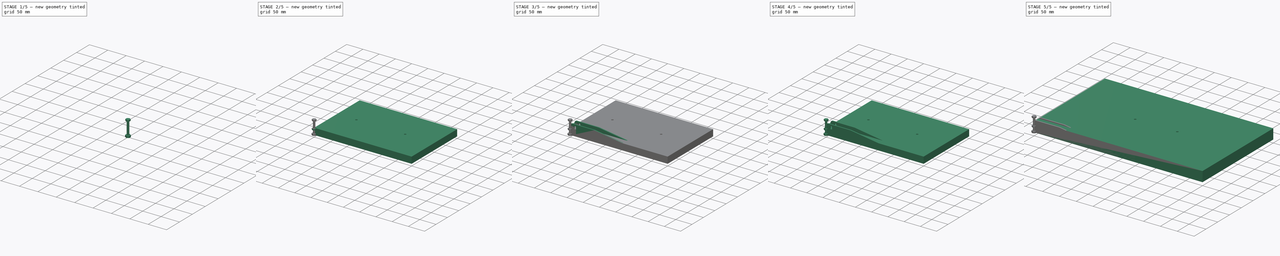
[diagram: build sequence overview — one tinted view per stage of 5, left to right]
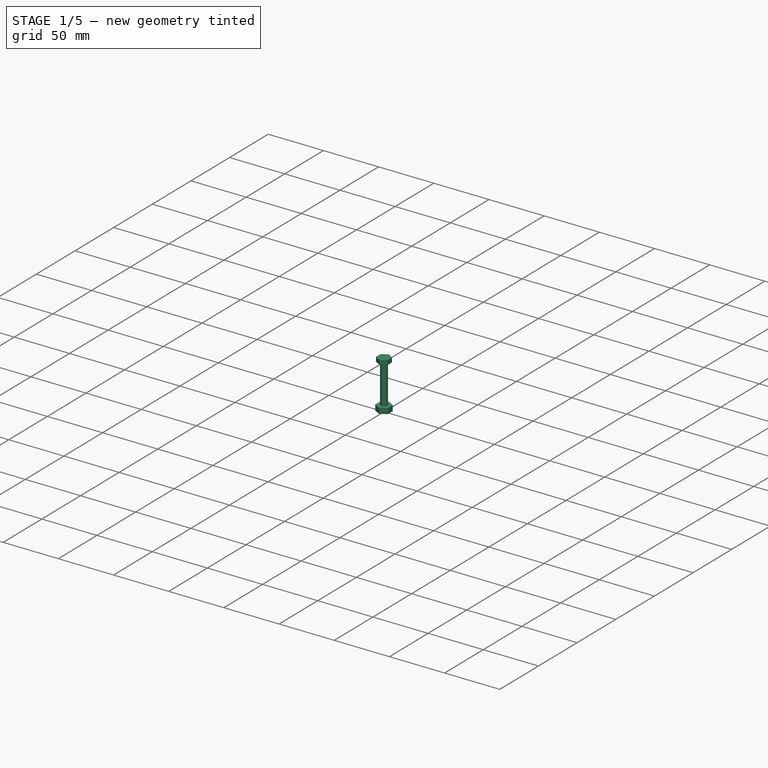
[diagram: stage 1 of 5 — iso view after this stage's code; geometry added in this stage tinted green]
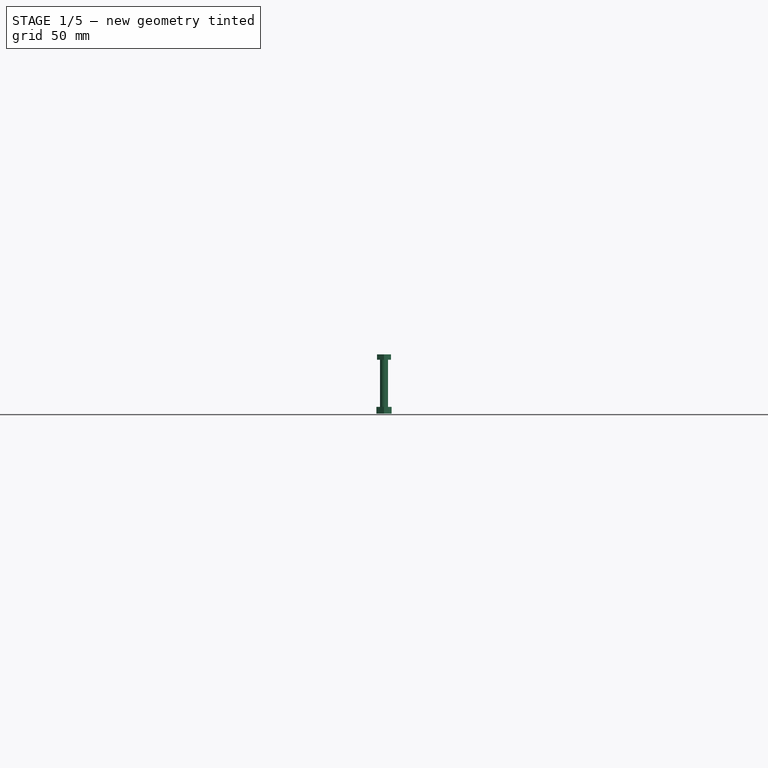
[diagram: stage 1 of 5 — front view after this stage's code; geometry added in this stage tinted green]
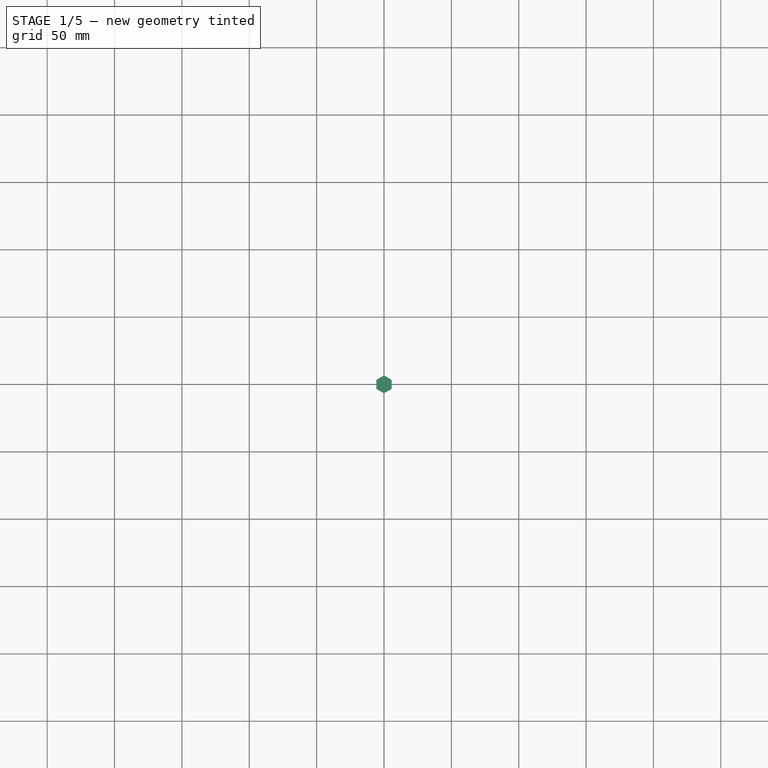
[diagram: stage 1 of 5 — top view after this stage's code; geometry added in this stage tinted green]
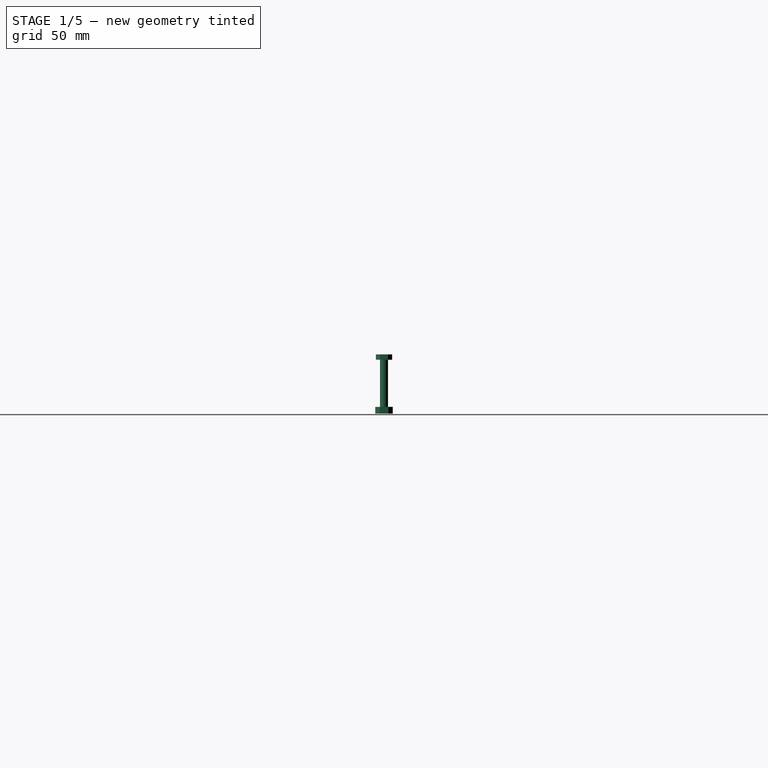
[diagram: stage 1 of 5 — right view after this stage's code; geometry added in this stage tinted green]
FCSTD DOCUMENT  (FreeCAD 0.19R24291 (Git))
Label: DIG.MAN_PRO_ULT
License: All rights reserved
LicenseURL: http://en.wikipedia.org/wiki/All_rights_reserved
objects: Sketcher::SketchObject×31, PartDesign::Body×18, PartDesign::Pocket×11, PartDesign::AdditiveHelix×8, Part::Helix×7, Part::Cylinder×6, PartDesign::ShapeBinder×6, PartDesign::SubtractivePipe×6, PartDesign::Pad×6, PartDesign::FeatureBase×5, PartDesign::Chamfer×5, PartDesign::AdditiveBox×4, PartDesign::Fillet×2
note: 157 computed .brp shape members not serialized (recipe doc carries the construction recipe); baked Part::Feature solids carry a one-line shape summary decoded from their .brp

FEATURE [PartDesign::Body] Body014
  BaseFeature = -> Cylinder002
  Group = -> [BaseFeature002,Sketch023,Chamfer002,ShapeBinder002,SubtractivePipe002,Sketch024,Pad002]
  Origin = -> Origin014
  Placement = pos=(360,150,78) rot=(1,0,0;3.14159rad)
  Tip = -> Pad002
FEATURE [Part::Cylinder] Cylinder003
  Angle = 360
  AttacherType = Attacher::AttachEngine3D
  Height = 15
  Radius = 3
FEATURE [Part::Helix] Helix003
  Angle = 0
  AttacherType = Attacher::AttachEngine3D
  Height = 15
  LocalCoord = 0
  Pitch = 0.75
  Radius = 3
  Style = 1
FEATURE [PartDesign::ShapeBinder] ShapeBinder003
  Support = -> [Helix003]
  TraceSupport = false
FEATURE [PartDesign::FeatureBase] BaseFeature003
  BaseFeature = -> Cylinder003
FEATURE [Sketcher::SketchObject] Sketch025
  FullyConstrained = false
  MapMode = 5
  Placement = pos=(0,0,0) rot=(1,0,0;1.5708rad)
  Support = -> [XZ_Plane015]
  sketch-geometry (4):
    g0: LineSegment StartX=3.02492 StartY=0.245113 StartZ=0 EndX=3.02492 EndY=-0.225462 EndZ=0
    g1: LineSegment StartX=3.02492 StartY=-0.225462 StartZ=0 EndX=2.75104 EndY=-0.059554 EndZ=0
    g2: LineSegment StartX=2.75104 StartY=-0.059554 StartZ=0 EndX=2.74501 EndY=0.091272 EndZ=0
    g3: LineSegment StartX=2.74501 StartY=0.091272 StartZ=0 EndX=3.02492 EndY=0.245113 EndZ=0
  constraints (6):
    c: Vertical(g0)
    c: Coincident(g0,g1)
    c: Coincident(g1,g2)
    c: Coincident(g2,g3)
    c: Coincident(g3,g0)
    c: Angle(g1,g3) = 1.0472
FEATURE [PartDesign::Chamfer] Chamfer003
  Angle = 45
  Base = -> BaseFeature003 [Face3]
  BaseFeature = -> BaseFeature003
  ChamferType = 0
  FlipDirection = false
  Size = 0.5
  Size2 = 1
  SupportTransform = false
FEATURE [PartDesign::Body] Body015
  BaseFeature = -> Cylinder003
  Group = -> [BaseFeature003,Sketch025,Chamfer003,ShapeBinder003,SubtractivePipe003,Sketch026,Pad003]
  Origin = -> Origin015
  Placement = pos=(210,150,78) rot=(1,0,0;3.14159rad)
  Tip = -> Pad003
FEATURE [Sketcher::SketchObject] Sketch028
  FullyConstrained = true
  MapMode = 5
  Support = -> [XY_Plane016]
  sketch-geometry (8):
    g0: LineSegment StartX=0 StartY=6.5 StartZ=0 EndX=-5.62917 EndY=3.25 EndZ=0
    g1: LineSegment StartX=-5.62917 StartY=3.25 StartZ=0 EndX=-5.62917 EndY=-3.25 EndZ=0
    g2: LineSegment StartX=-5.62917 StartY=-3.25 StartZ=0 EndX=-3.5039e-12 EndY=-6.5 EndZ=0
    g3: LineSegment StartX=-3.5039e-12 StartY=-6.5 StartZ=0 EndX=5.62917 EndY=-3.25 EndZ=0
    g4: LineSegment StartX=5.62917 StartY=-3.25 StartZ=0 EndX=5.62917 EndY=3.25 EndZ=0
    g5: LineSegment StartX=5.62917 StartY=3.25 StartZ=0 EndX=0 EndY=6.5 EndZ=0
    g6: Circle CenterX=0 CenterY=0 CenterZ=0 NormalX=0 NormalY=0 NormalZ=1 AngleXU=0 Radius=6.5
    g7: Circle CenterX=0 CenterY=0 CenterZ=0 NormalX=0 NormalY=0 NormalZ=1 AngleXU=0 Radius=3
  constraints (18):
    c: Coincident(g0,g1)
    c: Coincident(g1,g2)
    c: Coincident(g2,g3)
    c: Coincident(g3,g4)
    c: Coincident(g4,g5)
    c: Coincident(g5,g0)
    c: Equal(g0, g1-g5) x5
    c: PointOnObject(g0,g6)
    c: PointOnObject(g1,g6)
    c: PointOnObject(g2,g6)
    c: PointOnObject(g3,g6)
    c: PointOnObject(g4,g6)
    c: PointOnObject(g5,g6)
    c: Coincident(g6,g-1)
    c: PointOnObject(g5,g-2)
    c: DistanceY(g2,g0) = 13
    c: Coincident(g7,g-1)
    c: Diameter(g7) = 6
FEATURE [PartDesign::Pad] Pad004
  Direction = (1,1,1)
  Length = 5
  Length2 = 100
  Profile = -> Sketch028
  Type = 0
FEATURE [Part::Helix] Helix004
  Angle = 0
  AttacherType = Attacher::AttachEngine3D
  Height = 10
  LocalCoord = 0
  Pitch = 0.7
  Placement = pos=(0,0,-2.5) rot=(0,0,1;0rad)
  Radius = 3.5
  Style = 1
FEATURE [PartDesign::ShapeBinder] ShapeBinder004
  Placement = pos=(-165,-47.5,170) rot=(-1,0,0;1.5708rad)
  Support = -> [Helix004]
  TraceSupport = true
FEATURE [Sketcher::SketchObject] Sketch027
  ExternalGeometry = -> [ShapeBinder004]
  FullyConstrained = false
  MapMode = 5
  Placement = pos=(0,0,0) rot=(0.57735,0.57735,0.57735;2.0944rad)
  Support = -> [YZ_Plane016]
  sketch-geometry (4):
    g0: LineSegment StartX=-37.5 StartY=166.588 StartZ=0 EndX=-38.3 EndY=167.951 EndZ=0
    g1: LineSegment StartX=-38.3 StartY=167.951 StartZ=0 EndX=-234.359 EndY=165.224 EndZ=0
    g2: LineSegment StartX=-234.359 StartY=165.224 StartZ=0 EndX=-37.5 EndY=166.588 EndZ=0
    g3: GeomPoint X=-136.33 Y=166.588 Z=0
  constraints (8):
    c: Coincident(g0,g-3)
    c: Coincident(g0,g1)
    c: Coincident(g1,g2)
    c: Coincident(g2,g0)
    c: Angle(g0,g2) = 1.0472
    c: Symmetric(g1,g0,g3)
    c: Horizontal(g0,g3)
    c: DistanceX(g0,g0) = 0.8
FEATURE [PartDesign::SubtractivePipe] SubtractivePipe004
  AuxilleryCurvelinear = true
  AuxillerySpineTangent = false
  BaseFeature = -> Pad004
  Binormal = (0,0,0)
  Mode = 2
  Profile = -> Sketch027
  Spine = -> ShapeBinder004
  SpineTangent = false
  Transformation = 0
  Transition = 0
FEATURE [PartDesign::Body] Body016
  Group = -> [Sketch028,Pad004,ShapeBinder004,Sketch027,SubtractivePipe004]
  Origin = -> Origin016
  Placement = pos=(165,170,45) rot=(1,0,0;1.5708rad)
  Tip = -> SubtractivePipe004
FEATURE [Part::Cylinder] Cylinder004
  Angle = 360
  AttacherType = Attacher::AttachEngine3D
  Height = 35
  Radius = 3
FEATURE [Part::Helix] Helix005
  Angle = 0
  AttacherType = Attacher::AttachEngine3D
  Height = 13
  LocalCoord = 0
  Pitch = 0.75
  Radius = 3
  Style = 1
FEATURE [Sketcher::SketchObject] Sketch030
  FullyConstrained = false
  MapMode = 5
  Placement = pos=(0,0,0) rot=(1,0,0;1.5708rad)
  Support = -> [XZ_Plane017]
  sketch-geometry (4):
    g0: LineSegment StartX=3.01359 StartY=0.266356 StartZ=0 EndX=3.01359 EndY=-0.192488 EndZ=0
    g1: LineSegment StartX=3.01359 StartY=-0.192488 StartZ=0 EndX=2.72063 EndY=-0.065031 EndZ=0
    g2: LineSegment StartX=2.72063 StartY=-0.065031 StartZ=0 EndX=2.72063 EndY=0.04968 EndZ=0
    g3: LineSegment StartX=2.72063 StartY=0.04968 StartZ=0 EndX=3.01359 EndY=0.266356 EndZ=0
  constraints (7):
    c: Vertical(g0)
    c: Coincident(g0,g1)
    c: Coincident(g1,g2)
    c: Vertical(g2)
    c: Coincident(g2,g3)
    c: Coincident(g3,g0)
    c: Angle(g1,g3) = 1.0472
FEATURE [Part::Cylinder] Cylinder005
  Angle = 360
  AttacherType = Attacher::AttachEngine3D
  Height = 40
  Radius = 3
FEATURE [PartDesign::FeatureBase] BaseFeature004
  BaseFeature = -> Cylinder005
FEATURE [PartDesign::Chamfer] Chamfer004
  Angle = 45
  Base = -> BaseFeature004 [Face3]
  BaseFeature = -> BaseFeature004
  ChamferType = 0
  FlipDirection = false
  Size = 0.5
  Size2 = 1
  SupportTransform = false
FEATURE [Part::Helix] Helix006
  Angle = 0
  AttacherType = Attacher::AttachEngine3D
  Height = 13
  LocalCoord = 0
  Pitch = 0.75
  Radius = 3
  Style = 1
FEATURE [PartDesign::ShapeBinder] ShapeBinder005
  Support = -> [Helix006]
  TraceSupport = false
FEATURE [PartDesign::SubtractivePipe] SubtractivePipe005
  AuxilleryCurvelinear = true
  AuxillerySpineTangent = false
  BaseFeature = -> Chamfer004
  Binormal = (0,0,0)
  Mode = 2
  Profile = -> Sketch030
  Spine = -> ShapeBinder005
  SpineTangent = false
  Transformation = 0
  Transition = 0
FEATURE [Sketcher::SketchObject] Sketch029
  FullyConstrained = true
  MapMode = 5
  Placement = pos=(0,0,40) rot=(0,0,1;0rad)
  Support = -> [SubtractivePipe005]
  sketch-geometry (7):
    g0: LineSegment StartX=0 StartY=6 StartZ=0 EndX=-5.19615 EndY=3 EndZ=0
    g1: LineSegment StartX=-5.19615 StartY=3 StartZ=0 EndX=-5.19615 EndY=-3 EndZ=0
    g2: LineSegment StartX=-5.19615 StartY=-3 StartZ=0 EndX=0 EndY=-6 EndZ=0
    g3: LineSegment StartX=0 StartY=-6 StartZ=0 EndX=5.19615 EndY=-3 EndZ=0
    g4: LineSegment StartX=5.19615 StartY=-3 StartZ=0 EndX=5.19615 EndY=3 EndZ=0
    g5: LineSegment StartX=5.19615 StartY=3 StartZ=0 EndX=0 EndY=6 EndZ=0
    g6: Circle CenterX=0 CenterY=0 CenterZ=0 NormalX=0 NormalY=0 NormalZ=1 AngleXU=0 Radius=6
  constraints (16):
    c: Coincident(g0,g1)
    c: Coincident(g1,g2)
    c: Coincident(g2,g3)
    c: Coincident(g3,g4)
    c: Coincident(g4,g5)
    c: Coincident(g5,g0)
    c: Equal(g0, g1-g5) x5
    c: PointOnObject(g0,g6)
    c: PointOnObject(g1,g6)
    c: PointOnObject(g2,g6)
    c: PointOnObject(g3,g6)
    c: PointOnObject(g4,g6)
    c: PointOnObject(g5,g6)
    c: Coincident(g6,g-1)
    c: PointOnObject(g5,g-2)
    c: DistanceY(g2,g0) = 12
FEATURE [PartDesign::Pad] Pad005
  BaseFeature = -> SubtractivePipe005
  Direction = (1,1,1)
  Length = 4
  Length2 = 100
  Profile = -> Sketch029
  Type = 0
FEATURE [PartDesign::Body] Body017
  BaseFeature = -> Cylinder005
  Group = -> [BaseFeature004,Chamfer004,ShapeBinder005,Sketch030,SubtractivePipe005,Sketch029,Pad005]
  Origin = -> Origin017
  Placement = pos=(165,175,45) rot=(1,0,0;1.5708rad)
  Tip = -> Pad005
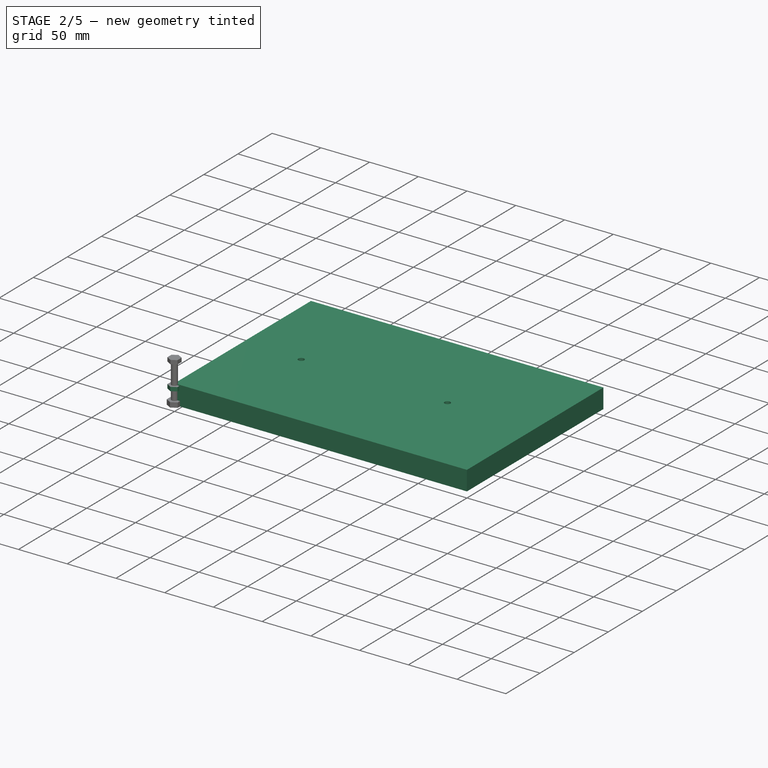
[diagram: stage 2 of 5 — iso view after this stage's code; geometry added in this stage tinted green]
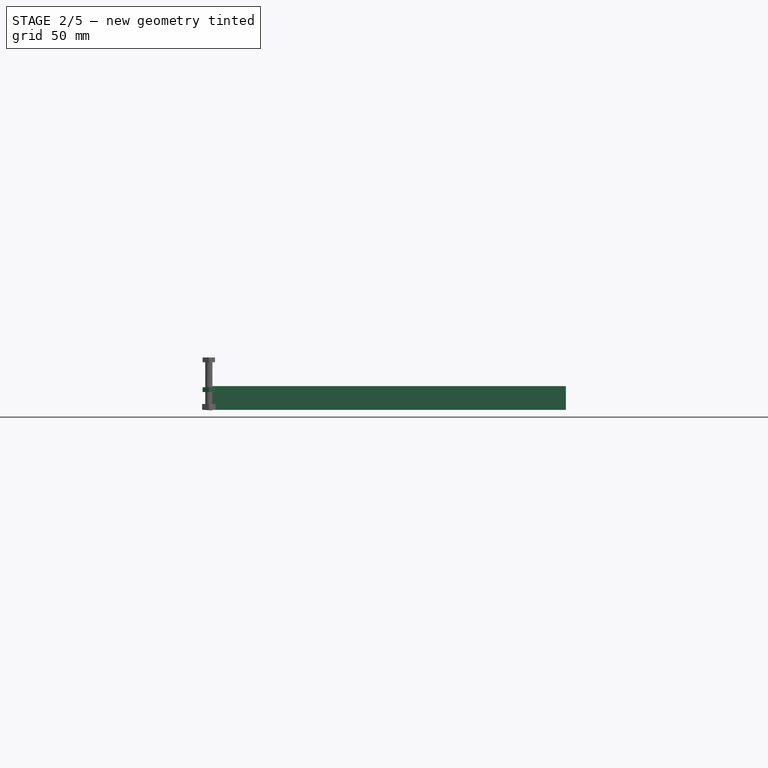
[diagram: stage 2 of 5 — front view after this stage's code; geometry added in this stage tinted green]
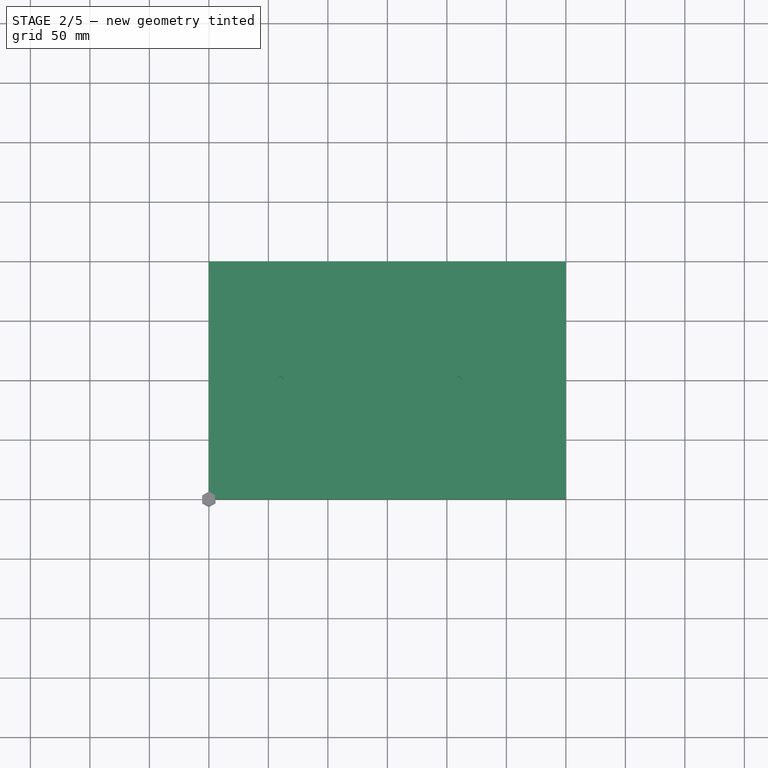
[diagram: stage 2 of 5 — top view after this stage's code; geometry added in this stage tinted green]
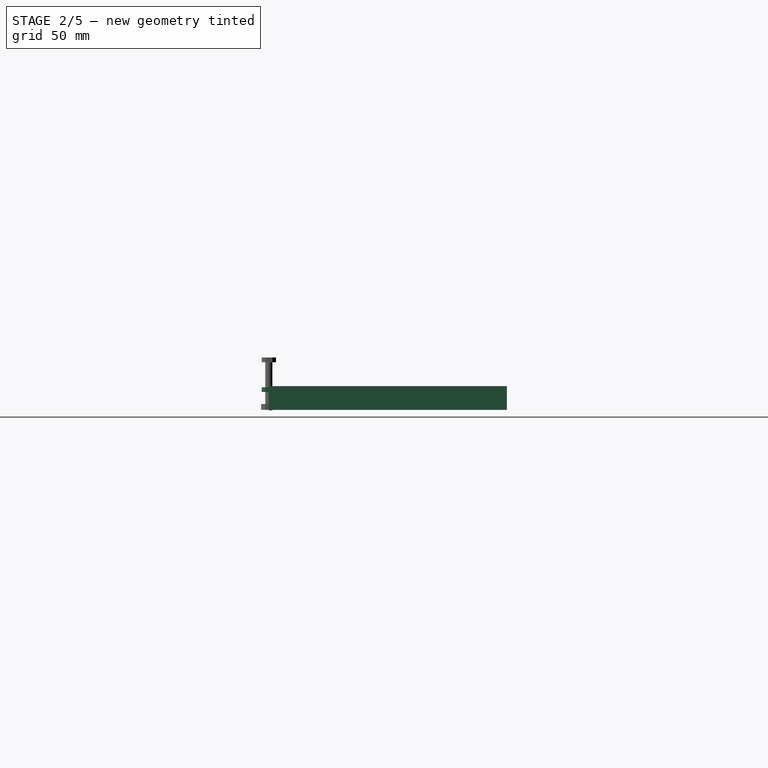
[diagram: stage 2 of 5 — right view after this stage's code; geometry added in this stage tinted green]
FEATURE [PartDesign::Body] Body008
  Group = -> [Box002,Sketch013,Pocket006,Sketch014,Pocket009,Fillet,Fillet001,Sketch016,Pocket002,Sketch015,Pocket007,Sketch017,Pocket008]
  Origin = -> Origin008
  Placement = pos=(150,161,66) rot=(1,0,0;3.14159rad)
  Tip = -> Pocket008
FEATURE [PartDesign::Body] Body009
  Group = -> [Sketch019,AdditiveHelix005]
  Origin = -> Origin009
  Placement = pos=(210,150,63) rot=(0,0,1;0rad)
  Tip = -> AdditiveHelix005
FEATURE [PartDesign::Body] Body010
  Group = -> [Sketch018,AdditiveHelix004]
  Origin = -> Origin010
  Placement = pos=(360,150,63) rot=(0,0,1;0rad)
  Tip = -> AdditiveHelix004
FEATURE [PartDesign::AdditiveBox] Box003
  AttacherType = Attacher::AttachEngine3D
  Height = 20
  Length = 300
  Width = 200
FEATURE [Sketcher::SketchObject] Sketch020
  FullyConstrained = true
  MapMode = 5
  Placement = pos=(0,0,20) rot=(0,0,1;0rad)
  Support = -> [Box003]
  sketch-geometry (2):
    g0: Circle CenterX=60 CenterY=100 CenterZ=0 NormalX=0 NormalY=0 NormalZ=1 AngleXU=0 Radius=3
    g1: Circle CenterX=210 CenterY=100 CenterZ=0 NormalX=0 NormalY=0 NormalZ=1 AngleXU=0 Radius=3
  constraints (6):
    c: Radius(g1) = 3
    c: Radius(g0) = 3
    c: DistanceX(g0) = 60
    c: DistanceY(g0) = 100
    c: DistanceX(g1) = 210
    c: DistanceY(g1) = 100
FEATURE [Sketcher::SketchObject] Sketch021
  FullyConstrained = false
  MapMode = 5
  Placement = pos=(0,0,0) rot=(1,0,0;1.5708rad)
  Support = -> [XZ_Plane012]
  sketch-geometry (4):
    g0: LineSegment StartX=2.2049 StartY=0.00541692 StartZ=0 EndX=2.99622 EndY=-0.462288 EndZ=0
    g1: LineSegment StartX=2.99622 StartY=-0.462288 StartZ=0 EndX=3.00561 EndY=0.456871 EndZ=0
    g2: LineSegment StartX=3.00561 StartY=0.456871 StartZ=0 EndX=2.2049 EndY=0.00541692 EndZ=0
    g3: Circle CenterX=2.73558 CenterY=0 CenterZ=0 NormalX=0 NormalY=0 NormalZ=1 AngleXU=0 Radius=0.530704
  constraints (9):
    c: Coincident(g0,g1)
    c: Coincident(g1,g2)
    c: Coincident(g2,g0)
    c: Equal(g0,g1)
    c: Equal(g0,g2)
    c: PointOnObject(g0,g3)
    c: PointOnObject(g1,g3)
    c: PointOnObject(g2,g3)
    c: PointOnObject(g3,g-1)
FEATURE [PartDesign::AdditiveHelix] AdditiveHelix006
  Angle = 0
  Axis = (0,-2e-16,1)
  Base = (0,0,0)
  HasBeenEdited = true
  Height = 15
  LeftHanded = false
  Mode = 0
  Outside = false
  Pitch = 1
  Placement = pos=(0,0,0) rot=(1,0,0;1.5708rad)
  Profile = -> Sketch021
  ReferenceAxis = -> Sketch021 [V_Axis]
  Turns = 15
FEATURE [PartDesign::Pocket] Pocket010
  BaseFeature = -> Box003
  Length = 15
  Length2 = 100
  Profile = -> Sketch020
  Type = 0
FEATURE [PartDesign::Body] Body011
  Group = -> [Sketch022,AdditiveHelix007]
  Origin = -> Origin012
  Placement = pos=(360,150,63) rot=(0,0,1;0rad)
  Tip = -> AdditiveHelix007
FEATURE [PartDesign::Body] Body012
  Group = -> [Box003,Sketch020,Pocket010]
  Origin = -> Origin011
  Placement = pos=(150,250,86) rot=(1,0,0;3.14159rad)
  Tip = -> Pocket010
FEATURE [PartDesign::Body] Body013
  Group = -> [Sketch021,AdditiveHelix006]
  Origin = -> Origin013
  Placement = pos=(210,150,63) rot=(1,0,0;0rad)
  Tip = -> AdditiveHelix006
FEATURE [Part::Cylinder] Cylinder002
  Angle = 360
  AttacherType = Attacher::AttachEngine3D
  Height = 15
  Radius = 3
FEATURE [Part::Helix] Helix002
  Angle = 0
  AttacherType = Attacher::AttachEngine3D
  Height = 15
  LocalCoord = 0
  Pitch = 0.75
  Radius = 3
  Style = 1
FEATURE [PartDesign::ShapeBinder] ShapeBinder002
  Support = -> [Helix002]
  TraceSupport = false
FEATURE [PartDesign::FeatureBase] BaseFeature002
  BaseFeature = -> Cylinder002
FEATURE [PartDesign::Chamfer] Chamfer002
  Angle = 45
  Base = -> BaseFeature002 [Face3]
  BaseFeature = -> BaseFeature002
  ChamferType = 0
  FlipDirection = false
  Size = 0.5
  Size2 = 1
  SupportTransform = false
FEATURE [Sketcher::SketchObject] Sketch023
  FullyConstrained = false
  MapMode = 5
  Placement = pos=(0,0,0) rot=(1,0,0;1.5708rad)
  Support = -> [XZ_Plane014]
  sketch-geometry (4):
    g0: LineSegment StartX=3.02492 StartY=0.245113 StartZ=0 EndX=3.02492 EndY=-0.225462 EndZ=0
    g1: LineSegment StartX=3.02492 StartY=-0.225462 StartZ=0 EndX=2.75104 EndY=-0.059554 EndZ=0
    g2: LineSegment StartX=2.75104 StartY=-0.059554 StartZ=0 EndX=2.74501 EndY=0.091272 EndZ=0
    g3: LineSegment StartX=2.74501 StartY=0.091272 StartZ=0 EndX=3.02492 EndY=0.245113 EndZ=0
  constraints (6):
    c: Vertical(g0)
    c: Coincident(g0,g1)
    c: Coincident(g1,g2)
    c: Coincident(g2,g3)
    c: Coincident(g3,g0)
    c: Angle(g1,g3) = 1.0472
FEATURE [PartDesign::SubtractivePipe] SubtractivePipe002
  AuxilleryCurvelinear = true
  AuxillerySpineTangent = false
  BaseFeature = -> Chamfer002
  Binormal = (0,0,0)
  Mode = 2
  Profile = -> Sketch023
  Spine = -> ShapeBinder002
  SpineTangent = false
  Transformation = 0
  Transition = 0
FEATURE [Sketcher::SketchObject] Sketch024
  FullyConstrained = true
  MapMode = 5
  Placement = pos=(0,0,15) rot=(0,0,1;0rad)
  Support = -> [SubtractivePipe002]
  sketch-geometry (7):
    g0: LineSegment StartX=0 StartY=6 StartZ=0 EndX=-5.19615 EndY=3 EndZ=0
    g1: LineSegment StartX=-5.19615 StartY=3 StartZ=0 EndX=-5.19615 EndY=-3 EndZ=0
    g2: LineSegment StartX=-5.19615 StartY=-3 StartZ=0 EndX=-9e-16 EndY=-6 EndZ=0
    g3: LineSegment StartX=-6e-16 StartY=-6 StartZ=0 EndX=5.19615 EndY=-3 EndZ=0
    g4: LineSegment StartX=5.19615 StartY=-3 StartZ=0 EndX=5.19615 EndY=3 EndZ=0
    g5: LineSegment StartX=5.19615 StartY=3 StartZ=0 EndX=0 EndY=6 EndZ=0
    g6: Circle CenterX=0 CenterY=0 CenterZ=0 NormalX=0 NormalY=0 NormalZ=1 AngleXU=0 Radius=6
  constraints (16):
    c: Coincident(g0,g1)
    c: Coincident(g1,g2)
    c: Coincident(g2,g3)
    c: Coincident(g3,g4)
    c: Coincident(g4,g5)
    c: Coincident(g5,g0)
    c: Equal(g0, g1-g5) x5
    c: PointOnObject(g0,g6)
    c: PointOnObject(g1,g6)
    c: PointOnObject(g2,g6)
    c: PointOnObject(g3,g6)
    c: PointOnObject(g4,g6)
    c: PointOnObject(g5,g6)
    c: Coincident(g6,g-1)
    c: PointOnObject(g5,g-2)
    c: DistanceY(g2,g0) = 12
FEATURE [PartDesign::Pad] Pad002
  BaseFeature = -> SubtractivePipe002
  Direction = (1,1,1)
  Length = 4
  Length2 = 100
  Profile = -> Sketch024
  Type = 0
FEATURE [PartDesign::SubtractivePipe] SubtractivePipe003
  AuxilleryCurvelinear = true
  AuxillerySpineTangent = false
  BaseFeature = -> Chamfer003
  Binormal = (0,0,0)
  Mode = 2
  Profile = -> Sketch025
  Spine = -> ShapeBinder003
  SpineTangent = false
  Transformation = 0
  Transition = 0
FEATURE [Sketcher::SketchObject] Sketch026
  FullyConstrained = true
  MapMode = 5
  Placement = pos=(0,0,15) rot=(0,0,1;0rad)
  Support = -> [SubtractivePipe003]
  sketch-geometry (7):
    g0: LineSegment StartX=0 StartY=6 StartZ=0 EndX=-5.19615 EndY=3 EndZ=0
    g1: LineSegment StartX=-5.19615 StartY=3 StartZ=0 EndX=-5.19615 EndY=-3 EndZ=0
    g2: LineSegment StartX=-5.19615 StartY=-3 StartZ=0 EndX=-9e-16 EndY=-6 EndZ=0
    g3: LineSegment StartX=-6e-16 StartY=-6 StartZ=0 EndX=5.19615 EndY=-3 EndZ=0
    g4: LineSegment StartX=5.19615 StartY=-3 StartZ=0 EndX=5.19615 EndY=3 EndZ=0
    g5: LineSegment StartX=5.19615 StartY=3 StartZ=0 EndX=0 EndY=6 EndZ=0
    g6: Circle CenterX=0 CenterY=0 CenterZ=0 NormalX=0 NormalY=0 NormalZ=1 AngleXU=0 Radius=6
  constraints (16):
    c: Coincident(g0,g1)
    c: Coincident(g1,g2)
    c: Coincident(g2,g3)
    c: Coincident(g3,g4)
    c: Coincident(g4,g5)
    c: Coincident(g5,g0)
    c: Equal(g0, g1-g5) x5
    c: PointOnObject(g0,g6)
    c: PointOnObject(g1,g6)
    c: PointOnObject(g2,g6)
    c: PointOnObject(g3,g6)
    c: PointOnObject(g4,g6)
    c: PointOnObject(g5,g6)
    c: Coincident(g6,g-1)
    c: PointOnObject(g5,g-2)
    c: DistanceY(g2,g0) = 12
FEATURE [PartDesign::Pad] Pad003
  BaseFeature = -> SubtractivePipe003
  Direction = (1,1,1)
  Length = 4
  Length2 = 100
  Profile = -> Sketch026
  Type = 0
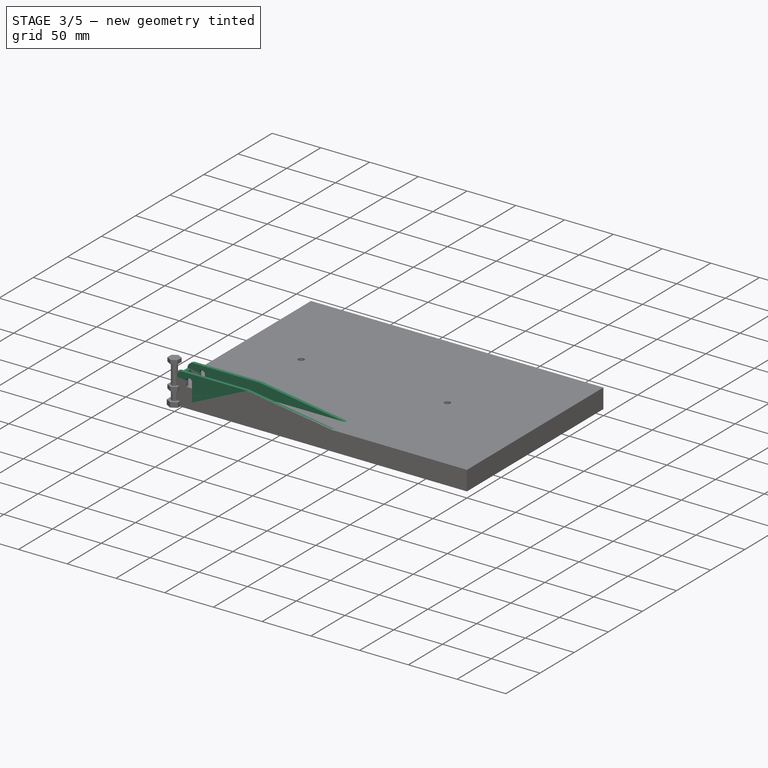
[diagram: stage 3 of 5 — iso view after this stage's code; geometry added in this stage tinted green]
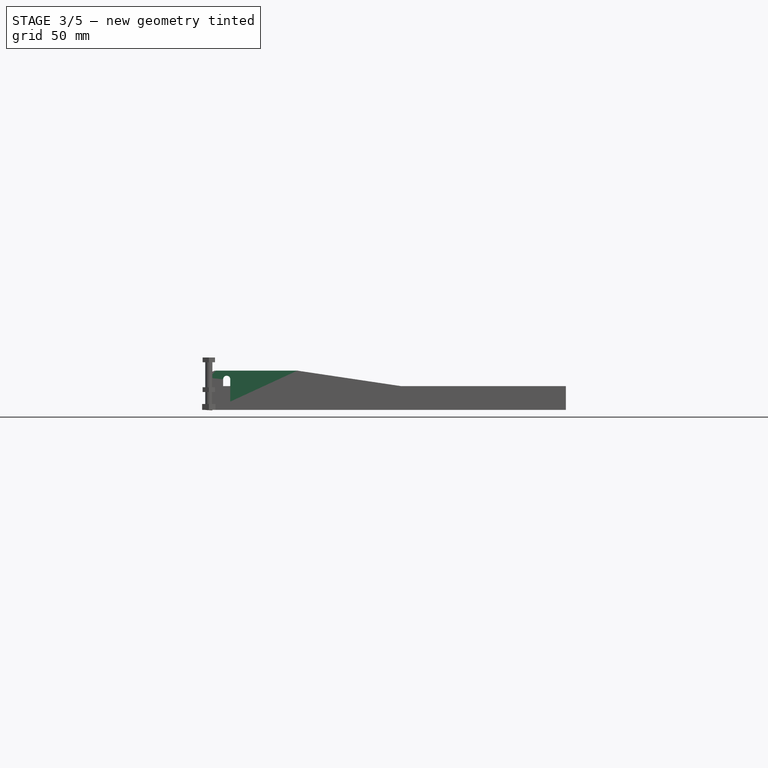
[diagram: stage 3 of 5 — front view after this stage's code; geometry added in this stage tinted green]
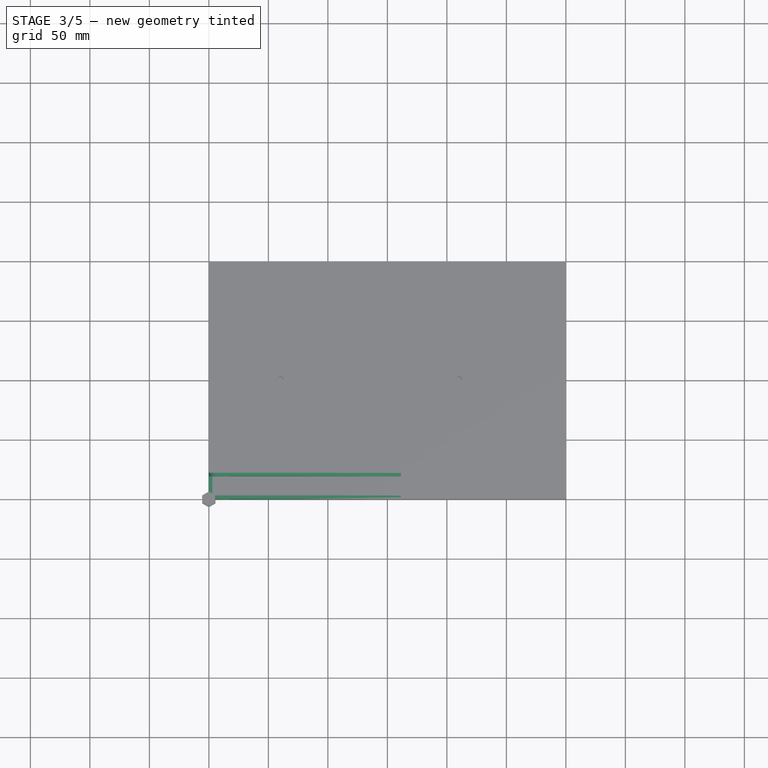
[diagram: stage 3 of 5 — top view after this stage's code; geometry added in this stage tinted green]
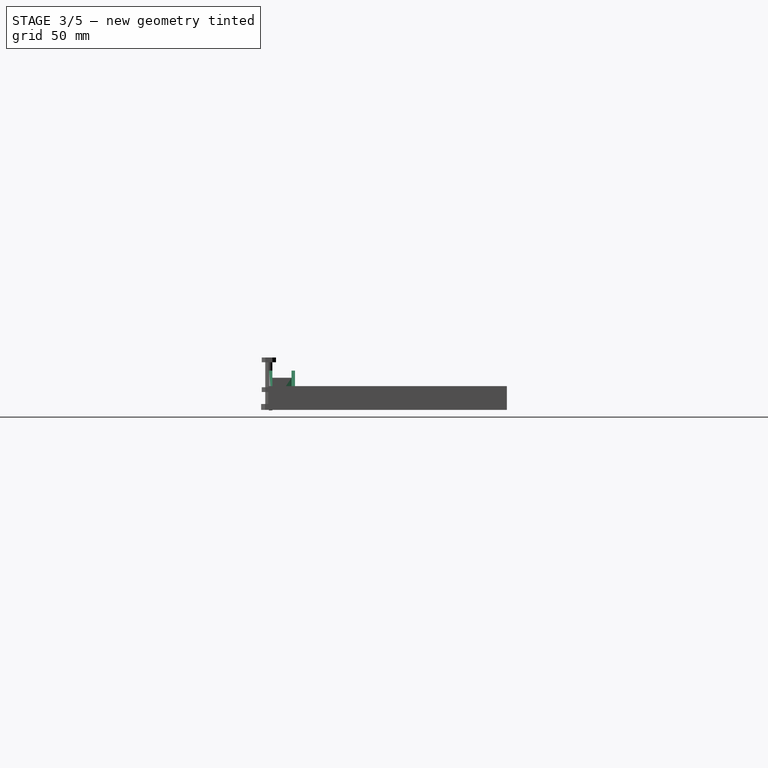
[diagram: stage 3 of 5 — right view after this stage's code; geometry added in this stage tinted green]
FEATURE [PartDesign::Body] Body007
  BaseFeature = -> Cylinder001
  Group = -> [BaseFeature001,Sketch011,Chamfer001,ShapeBinder001,SubtractivePipe001,Sketch012,Pad001]
  Origin = -> Origin007
  Placement = pos=(320,150,18) rot=(0,0,1;0rad)
  Tip = -> Pad001
FEATURE [Sketcher::SketchObject] Sketch018
  FullyConstrained = false
  MapMode = 5
  Placement = pos=(0,0,0) rot=(1,0,0;1.5708rad)
  Support = -> [XZ_Plane008]
  sketch-geometry (4):
    g0: LineSegment StartX=2.2049 StartY=0.00541692 StartZ=0 EndX=2.99622 EndY=-0.462288 EndZ=0
    g1: LineSegment StartX=2.99622 StartY=-0.462288 StartZ=0 EndX=3.00561 EndY=0.456871 EndZ=0
    g2: LineSegment StartX=3.00561 StartY=0.456871 StartZ=0 EndX=2.2049 EndY=0.00541692 EndZ=0
    g3: Circle CenterX=2.73558 CenterY=0 CenterZ=0 NormalX=0 NormalY=0 NormalZ=1 AngleXU=0 Radius=0.530704
  constraints (9):
    c: Coincident(g0,g1)
    c: Coincident(g1,g2)
    c: Coincident(g2,g0)
    c: Equal(g0,g1)
    c: Equal(g0,g2)
    c: PointOnObject(g0,g3)
    c: PointOnObject(g1,g3)
    c: PointOnObject(g2,g3)
    c: PointOnObject(g3,g-1)
FEATURE [PartDesign::AdditiveHelix] AdditiveHelix004
  Angle = 0
  Axis = (0,-2e-16,1)
  Base = (0,0,0)
  HasBeenEdited = true
  Height = 3
  LeftHanded = false
  Mode = 0
  Outside = false
  Pitch = 1
  Placement = pos=(0,0,0) rot=(1,0,0;1.5708rad)
  Profile = -> Sketch018
  ReferenceAxis = -> Sketch018 [V_Axis]
  Turns = 3
FEATURE [Sketcher::SketchObject] Sketch019
  FullyConstrained = false
  MapMode = 5
  Placement = pos=(0,0,0) rot=(1,0,0;1.5708rad)
  Support = -> [XZ_Plane010]
  sketch-geometry (4):
    g0: LineSegment StartX=2.2049 StartY=0.00541692 StartZ=0 EndX=2.99622 EndY=-0.462288 EndZ=0
    g1: LineSegment StartX=2.99622 StartY=-0.462288 StartZ=0 EndX=3.00561 EndY=0.456871 EndZ=0
    g2: LineSegment StartX=3.00561 StartY=0.456871 StartZ=0 EndX=2.2049 EndY=0.00541692 EndZ=0
    g3: Circle CenterX=2.73558 CenterY=0 CenterZ=0 NormalX=0 NormalY=0 NormalZ=1 AngleXU=0 Radius=0.530704
  constraints (9):
    c: Coincident(g0,g1)
    c: Coincident(g1,g2)
    c: Coincident(g2,g0)
    c: Equal(g0,g1)
    c: Equal(g0,g2)
    c: PointOnObject(g0,g3)
    c: PointOnObject(g1,g3)
    c: PointOnObject(g2,g3)
    c: PointOnObject(g3,g-1)
FEATURE [PartDesign::AdditiveHelix] AdditiveHelix005
  Angle = 0
  Axis = (0,-2e-16,1)
  Base = (0,0,0)
  HasBeenEdited = true
  Height = 3
  LeftHanded = false
  Mode = 0
  Outside = false
  Pitch = 1
  Placement = pos=(0,0,0) rot=(1,0,0;1.5708rad)
  Profile = -> Sketch019
  ReferenceAxis = -> Sketch019 [V_Axis]
  Turns = 3
FEATURE [PartDesign::AdditiveBox] Box002
  AttacherType = Attacher::AttachEngine3D
  Height = 33
  Length = 250
  Width = 22
FEATURE [Sketcher::SketchObject] Sketch013
  FullyConstrained = false
  MapMode = 5
  Placement = pos=(0,0,33) rot=(0,0,1;0rad)
  Support = -> [Box002]
  sketch-geometry (4):
    g0: LineSegment StartX=3 StartY=19 StartZ=0 EndX=258.389 EndY=19 EndZ=0
    g1: LineSegment StartX=258.389 StartY=19 StartZ=0 EndX=258.389 EndY=3 EndZ=0
    g2: LineSegment StartX=258.389 StartY=3 StartZ=0 EndX=3 EndY=3 EndZ=0
    g3: LineSegment StartX=3 StartY=3 StartZ=0 EndX=3 EndY=19 EndZ=0
  constraints (13):
    c: Coincident(g0,g1)
    c: Coincident(g1,g2)
    c: Coincident(g2,g3)
    c: Coincident(g3,g0)
    c: Horizontal(g0)
    c: Horizontal(g2)
    c: Vertical(g1)
    c: Vertical(g3)
    c: DistanceY(g-1,g1) = 3
    c: DistanceY(g-1,g0) = 19
    c: DistanceY(g-1,g2) = 3
    c: DistanceX(g2) = 3
    c: DistanceY(g2) = 3
FEATURE [PartDesign::Pocket] Pocket006
  BaseFeature = -> Box002
  Length = 30
  Length2 = 100
  Profile = -> Sketch013
  Type = 0
FEATURE [Sketcher::SketchObject] Sketch014
  FullyConstrained = true
  MapMode = 5
  Placement = pos=(0,0,33) rot=(0,0,1;0rad)
  Support = -> [Pocket006]
  sketch-geometry (4):
    g0: LineSegment StartX=0 StartY=19 StartZ=0 EndX=3 EndY=19 EndZ=0
    g1: LineSegment StartX=3 StartY=19 StartZ=0 EndX=3 EndY=3 EndZ=0
    g2: LineSegment StartX=3 StartY=3 StartZ=0 EndX=0 EndY=3 EndZ=0
    g3: LineSegment StartX=0 StartY=3 StartZ=0 EndX=0 EndY=19 EndZ=0
  constraints (15):
    c: Coincident(g0,g1)
    c: Coincident(g1,g2)
    c: Coincident(g2,g3)
    c: Coincident(g3,g0)
    c: Horizontal(g0)
    c: Horizontal(g2)
    c: Vertical(g1)
    c: Vertical(g3)
    c: PointOnObject(g0,g-2)
    c: DistanceX(g1) = 3
    c: DistanceY(g1) = 3
    c: DistanceX(g0) = 3
    c: DistanceY(g0) = 19
    c: DistanceX(g2) = 0
    c: DistanceY(g2) = 3
FEATURE [PartDesign::Pocket] Pocket009
  BaseFeature = -> Pocket006
  Length = 6
  Length2 = 100
  Profile = -> Sketch014
  Type = 0
FEATURE [PartDesign::Fillet] Fillet
  Base = -> Pocket009 [Edge1]
  BaseFeature = -> Pocket009
  Radius = 6
  SupportTransform = false
FEATURE [PartDesign::Fillet] Fillet001
  Base = -> Fillet [Edge7]
  BaseFeature = -> Fillet
  Radius = 6
  SupportTransform = false
FEATURE [Sketcher::SketchObject] Sketch016
  FullyConstrained = false
  MapMode = 5
  Placement = pos=(0,0,0) rot=(1,0,0;1.5708rad)
  Support = -> [Fillet001]
  sketch-geometry (3):
    g0: LineSegment StartX=51.221 StartY=36.4524 StartZ=0 EndX=254.633 EndY=6.0809 EndZ=0
    g1: LineSegment StartX=51.221 StartY=36.4524 StartZ=0 EndX=253.715 EndY=36.4524 EndZ=0
    g2: LineSegment StartX=254.633 StartY=6.0809 StartZ=0 EndX=253.715 EndY=36.4524 EndZ=0
  constraints (4):
    c: Coincident(g1,g0)
    c: Horizontal(g1)
    c: Coincident(g2,g0)
    c: Coincident(g2,g1)
FEATURE [PartDesign::Pocket] Pocket002
  BaseFeature = -> Fillet001
  Length = 22
  Length2 = 100
  Profile = -> Sketch016
  Type = 0
FEATURE [Sketcher::SketchObject] Sketch015
  FullyConstrained = true
  MapMode = 5
  Placement = pos=(0,0,3) rot=(0,0,1;0rad)
  Support = -> [Pocket002]
  sketch-geometry (2):
    g0: Circle CenterX=60 CenterY=11 CenterZ=0 NormalX=0 NormalY=0 NormalZ=1 AngleXU=0 Radius=3
    g1: Circle CenterX=210 CenterY=11 CenterZ=0 NormalX=0 NormalY=0 NormalZ=1 AngleXU=0 Radius=3
  constraints (6):
    c: Radius(g1) = 3
    c: Radius(g0) = 3
    c: DistanceX(g0) = 60
    c: DistanceY(g0) = 11
    c: DistanceX(g1) = 210
    c: DistanceY(g1) = 11
FEATURE [PartDesign::Pocket] Pocket007
  BaseFeature = -> Pocket002
  Length = 5
  Length2 = 100
  Profile = -> Sketch015
  Type = 0
FEATURE [Sketcher::SketchObject] Sketch017
  FullyConstrained = false
  MapMode = 5
  Placement = pos=(0,0,0) rot=(1,0,0;1.5708rad)
  Support = -> [Pocket007]
  sketch-geometry (4):
    g0: ArcOfCircle CenterX=15 CenterY=25.7045 CenterZ=0 NormalX=0 NormalY=0 NormalZ=1 AngleXU=0 Radius=3 StartAngle=3e-16 EndAngle=3.14159
    g1: ArcOfCircle CenterX=15 CenterY=7 CenterZ=0 NormalX=0 NormalY=0 NormalZ=1 AngleXU=0 Radius=3 StartAngle=3.14159 EndAngle=6.28319
    g2: LineSegment StartX=12 StartY=25.7045 StartZ=0 EndX=12 EndY=7 EndZ=0
    g3: LineSegment StartX=18 StartY=25.7045 StartZ=0 EndX=18 EndY=7 EndZ=0
  constraints (9):
    c: Tangent(g0,g3) = 1.5708
    c: Tangent(g0,g2) = -1.5708
    c: Tangent(g2,g1) = -1.5708
    c: Tangent(g3,g1) = 1.5708
    c: Vertical(g2)
    c: Equal(g0,g1)
    c: Radius(g1) = 3
    c: DistanceX(g1) = 15
    c: DistanceY(g1) = 7
FEATURE [PartDesign::Pocket] Pocket008
  BaseFeature = -> Pocket007
  Length = 50
  Length2 = 100
  Profile = -> Sketch017
  Type = 0
FEATURE [Sketcher::SketchObject] Sketch022
  FullyConstrained = false
  MapMode = 5
  Placement = pos=(0,0,0) rot=(1,0,0;1.5708rad)
  Support = -> [XZ_Plane013]
  sketch-geometry (4):
    g0: LineSegment StartX=2.2049 StartY=0.00541692 StartZ=0 EndX=2.99622 EndY=-0.462288 EndZ=0
    g1: LineSegment StartX=2.99622 StartY=-0.462288 StartZ=0 EndX=3.00561 EndY=0.456871 EndZ=0
    g2: LineSegment StartX=3.00561 StartY=0.456871 StartZ=0 EndX=2.2049 EndY=0.00541692 EndZ=0
    g3: Circle CenterX=2.73558 CenterY=0 CenterZ=0 NormalX=0 NormalY=0 NormalZ=1 AngleXU=0 Radius=0.530704
  constraints (9):
    c: Coincident(g0,g1)
    c: Coincident(g1,g2)
    c: Coincident(g2,g0)
    c: Equal(g0,g1)
    c: Equal(g0,g2)
    c: PointOnObject(g0,g3)
    c: PointOnObject(g1,g3)
    c: PointOnObject(g2,g3)
    c: PointOnObject(g3,g-1)
FEATURE [PartDesign::AdditiveHelix] AdditiveHelix007
  Angle = 0
  Axis = (0,-2e-16,1)
  Base = (0,0,0)
  HasBeenEdited = true
  Height = 15
  LeftHanded = false
  Mode = 0
  Outside = false
  Pitch = 1
  Placement = pos=(0,0,0) rot=(1,0,0;1.5708rad)
  Profile = -> Sketch022
  ReferenceAxis = -> Sketch022 [V_Axis]
  Turns = 15
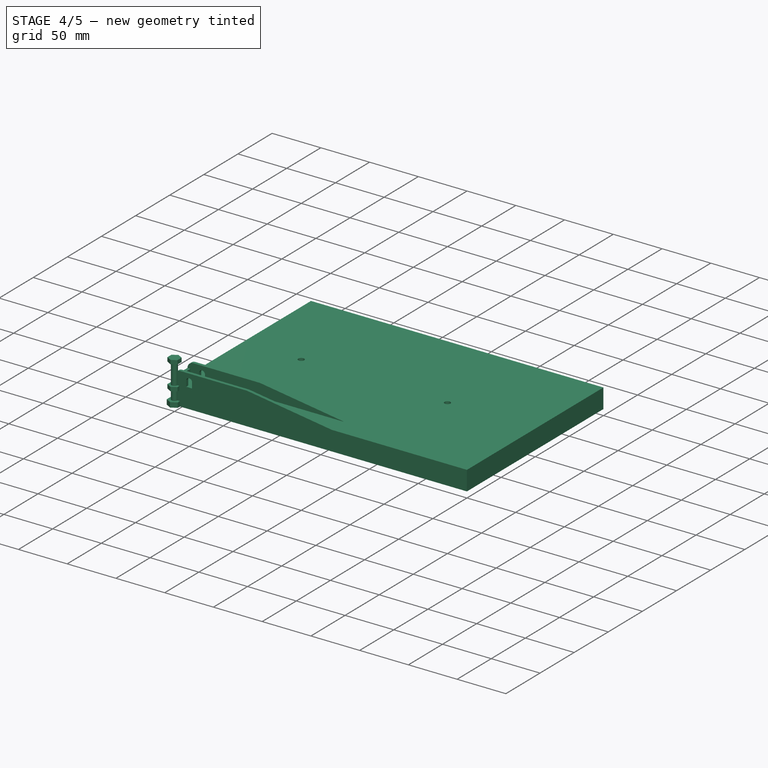
[diagram: stage 4 of 5 — iso view after this stage's code; geometry added in this stage tinted green]
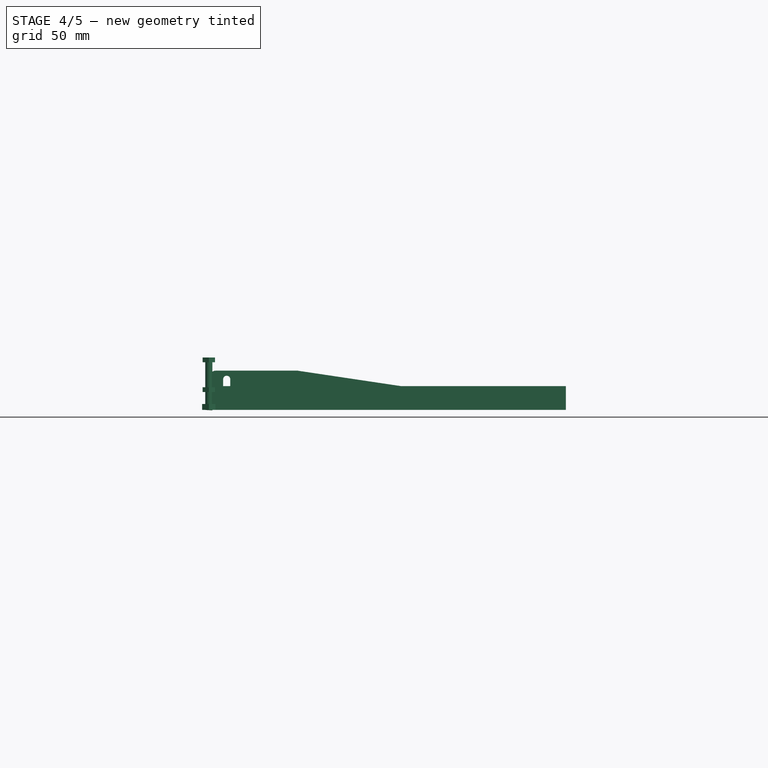
[diagram: stage 4 of 5 — front view after this stage's code; geometry added in this stage tinted green]
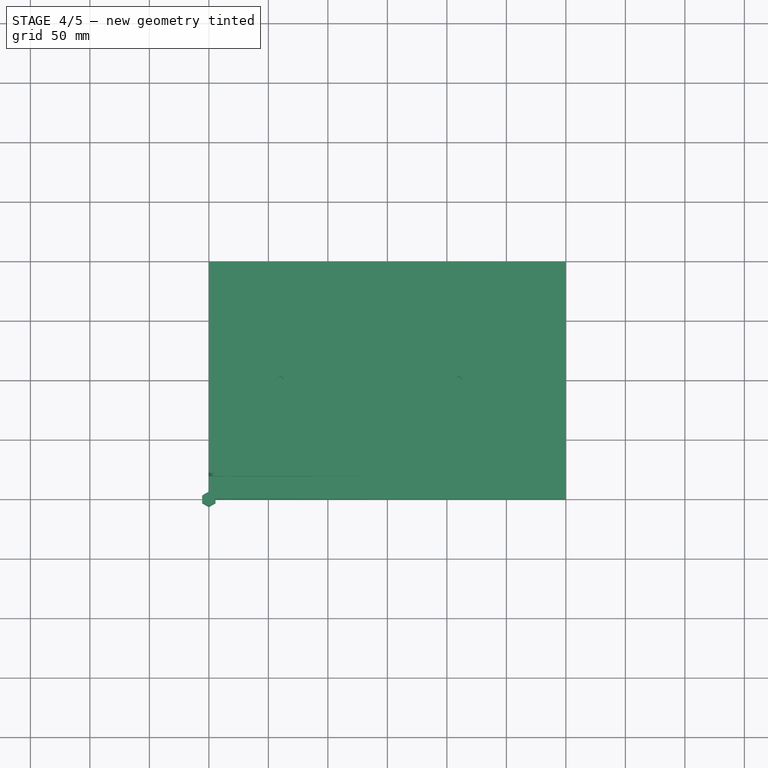
[diagram: stage 4 of 5 — top view after this stage's code; geometry added in this stage tinted green]
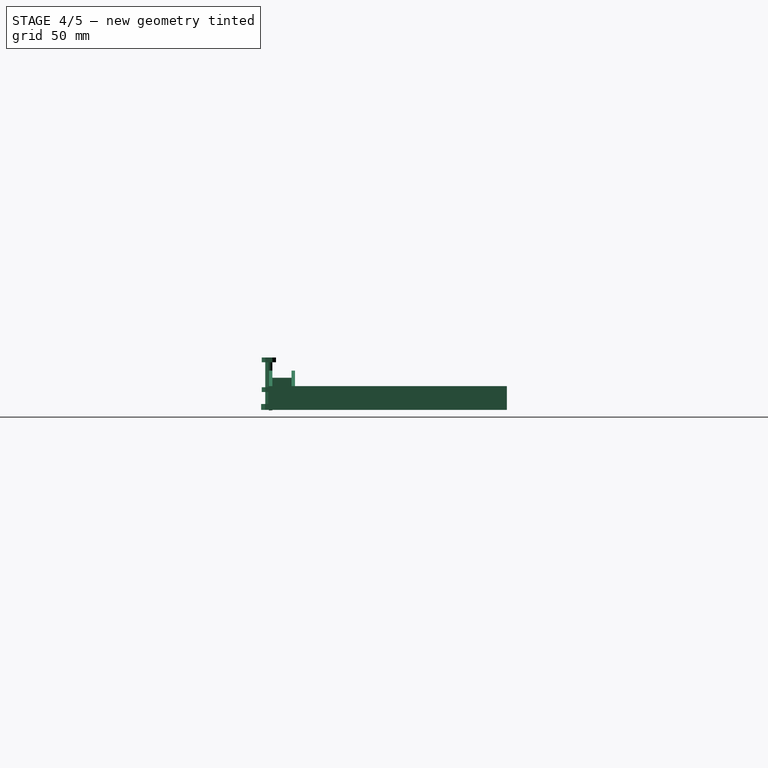
[diagram: stage 4 of 5 — right view after this stage's code; geometry added in this stage tinted green]
FEATURE [PartDesign::Body] Body004
  Group = -> [Sketch007,AdditiveHelix003]
  Origin = -> Origin003
  Placement = pos=(195,150,30) rot=(0,0,1;0rad)
  Tip = -> AdditiveHelix003
FEATURE [Sketcher::SketchObject] Sketch009
  FullyConstrained = false
  MapMode = 5
  Placement = pos=(0,0,0) rot=(1,0,0;1.5708rad)
  Support = -> [XZ_Plane006]
  sketch-geometry (4):
    g0: LineSegment StartX=3.02492 StartY=0.245113 StartZ=0 EndX=3.02492 EndY=-0.225462 EndZ=0
    g1: LineSegment StartX=3.02492 StartY=-0.225462 StartZ=0 EndX=2.75104 EndY=-0.059554 EndZ=0
    g2: LineSegment StartX=2.75104 StartY=-0.059554 StartZ=0 EndX=2.74501 EndY=0.091272 EndZ=0
    g3: LineSegment StartX=2.74501 StartY=0.091272 StartZ=0 EndX=3.02492 EndY=0.245113 EndZ=0
  constraints (6):
    c: Vertical(g0)
    c: Coincident(g0,g1)
    c: Coincident(g1,g2)
    c: Coincident(g2,g3)
    c: Coincident(g3,g0)
    c: Angle(g1,g3) = 1.0472
FEATURE [Part::Cylinder] Cylinder
  Angle = 360
  AttacherType = Attacher::AttachEngine3D
  Height = 15
  Radius = 3
FEATURE [PartDesign::FeatureBase] BaseFeature
  BaseFeature = -> Cylinder
FEATURE [Part::Helix] Helix
  Angle = 0
  AttacherType = Attacher::AttachEngine3D
  Height = 15
  LocalCoord = 0
  Pitch = 0.75
  Radius = 3
  Style = 1
FEATURE [PartDesign::ShapeBinder] ShapeBinder
  Support = -> [Helix]
  TraceSupport = false
FEATURE [PartDesign::Chamfer] Chamfer
  Angle = 45
  Base = -> BaseFeature [Face3]
  BaseFeature = -> BaseFeature
  ChamferType = 0
  FlipDirection = false
  Size = 0.5
  Size2 = 1
  SupportTransform = false
FEATURE [PartDesign::SubtractivePipe] SubtractivePipe
  AuxilleryCurvelinear = true
  AuxillerySpineTangent = false
  BaseFeature = -> Chamfer
  Binormal = (0,0,0)
  Mode = 2
  Profile = -> Sketch009
  Spine = -> ShapeBinder
  SpineTangent = false
  Transformation = 0
  Transition = 0
FEATURE [Sketcher::SketchObject] Sketch010
  FullyConstrained = true
  MapMode = 5
  Placement = pos=(0,0,15) rot=(0,0,1;0rad)
  Support = -> [SubtractivePipe]
  sketch-geometry (7):
    g0: LineSegment StartX=0 StartY=6 StartZ=0 EndX=-5.19615 EndY=3 EndZ=0
    g1: LineSegment StartX=-5.19615 StartY=3 StartZ=0 EndX=-5.19615 EndY=-3 EndZ=0
    g2: LineSegment StartX=-5.19615 StartY=-3 StartZ=0 EndX=-9e-16 EndY=-6 EndZ=0
    g3: LineSegment StartX=-6e-16 StartY=-6 StartZ=0 EndX=5.19615 EndY=-3 EndZ=0
    g4: LineSegment StartX=5.19615 StartY=-3 StartZ=0 EndX=5.19615 EndY=3 EndZ=0
    g5: LineSegment StartX=5.19615 StartY=3 StartZ=0 EndX=0 EndY=6 EndZ=0
    g6: Circle CenterX=0 CenterY=0 CenterZ=0 NormalX=0 NormalY=0 NormalZ=1 AngleXU=0 Radius=6
  constraints (16):
    c: Coincident(g0,g1)
    c: Coincident(g1,g2)
    c: Coincident(g2,g3)
    c: Coincident(g3,g4)
    c: Coincident(g4,g5)
    c: Coincident(g5,g0)
    c: Equal(g0, g1-g5) x5
    c: PointOnObject(g0,g6)
    c: PointOnObject(g1,g6)
    c: PointOnObject(g2,g6)
    c: PointOnObject(g3,g6)
    c: PointOnObject(g4,g6)
    c: PointOnObject(g5,g6)
    c: Coincident(g6,g-1)
    c: PointOnObject(g5,g-2)
    c: DistanceY(g2,g0) = 12
FEATURE [PartDesign::Pad] Pad
  BaseFeature = -> SubtractivePipe
  Direction = (1,1,1)
  Length = 4
  Length2 = 100
  Profile = -> Sketch010
  Type = 0
FEATURE [PartDesign::Body] Body006
  BaseFeature = -> Cylinder
  Group = -> [BaseFeature,Sketch009,Chamfer,ShapeBinder,SubtractivePipe,Sketch010,Pad]
  Origin = -> Origin006
  Placement = pos=(195,150,18) rot=(0,0,1;0rad)
  Tip = -> Pad
FEATURE [Part::Cylinder] Cylinder001
  Angle = 360
  AttacherType = Attacher::AttachEngine3D
  Height = 15
  Radius = 3
FEATURE [Part::Helix] Helix001
  Angle = 0
  AttacherType = Attacher::AttachEngine3D
  Height = 15
  LocalCoord = 0
  Pitch = 0.75
  Radius = 3
  Style = 1
FEATURE [PartDesign::ShapeBinder] ShapeBinder001
  Support = -> [Helix001]
  TraceSupport = false
FEATURE [PartDesign::FeatureBase] BaseFeature001
  BaseFeature = -> Cylinder001
FEATURE [PartDesign::Chamfer] Chamfer001
  Angle = 45
  Base = -> BaseFeature001 [Face3]
  BaseFeature = -> BaseFeature001
  ChamferType = 0
  FlipDirection = false
  Size = 0.5
  Size2 = 1
  SupportTransform = false
FEATURE [Sketcher::SketchObject] Sketch011
  FullyConstrained = false
  MapMode = 5
  Placement = pos=(0,0,0) rot=(1,0,0;1.5708rad)
  Support = -> [XZ_Plane007]
  sketch-geometry (4):
    g0: LineSegment StartX=3.02492 StartY=0.245113 StartZ=0 EndX=3.02492 EndY=-0.225462 EndZ=0
    g1: LineSegment StartX=3.02492 StartY=-0.225462 StartZ=0 EndX=2.75104 EndY=-0.059554 EndZ=0
    g2: LineSegment StartX=2.75104 StartY=-0.059554 StartZ=0 EndX=2.74501 EndY=0.091272 EndZ=0
    g3: LineSegment StartX=2.74501 StartY=0.091272 StartZ=0 EndX=3.02492 EndY=0.245113 EndZ=0
  constraints (6):
    c: Vertical(g0)
    c: Coincident(g0,g1)
    c: Coincident(g1,g2)
    c: Coincident(g2,g3)
    c: Coincident(g3,g0)
    c: Angle(g1,g3) = 1.0472
FEATURE [PartDesign::SubtractivePipe] SubtractivePipe001
  AuxilleryCurvelinear = true
  AuxillerySpineTangent = false
  BaseFeature = -> Chamfer001
  Binormal = (0,0,0)
  Mode = 2
  Profile = -> Sketch011
  Spine = -> ShapeBinder001
  SpineTangent = false
  Transformation = 0
  Transition = 0
FEATURE [Sketcher::SketchObject] Sketch012
  FullyConstrained = true
  MapMode = 5
  Placement = pos=(0,0,15) rot=(0,0,1;0rad)
  Support = -> [SubtractivePipe001]
  sketch-geometry (7):
    g0: LineSegment StartX=0 StartY=6 StartZ=0 EndX=-5.19615 EndY=3 EndZ=0
    g1: LineSegment StartX=-5.19615 StartY=3 StartZ=0 EndX=-5.19615 EndY=-3 EndZ=0
    g2: LineSegment StartX=-5.19615 StartY=-3 StartZ=0 EndX=-9e-16 EndY=-6 EndZ=0
    g3: LineSegment StartX=-6e-16 StartY=-6 StartZ=0 EndX=5.19615 EndY=-3 EndZ=0
    g4: LineSegment StartX=5.19615 StartY=-3 StartZ=0 EndX=5.19615 EndY=3 EndZ=0
    g5: LineSegment StartX=5.19615 StartY=3 StartZ=0 EndX=0 EndY=6 EndZ=0
    g6: Circle CenterX=0 CenterY=0 CenterZ=0 NormalX=0 NormalY=0 NormalZ=1 AngleXU=0 Radius=6
  constraints (16):
    c: Coincident(g0,g1)
    c: Coincident(g1,g2)
    c: Coincident(g2,g3)
    c: Coincident(g3,g4)
    c: Coincident(g4,g5)
    c: Coincident(g5,g0)
    c: Equal(g0, g1-g5) x5
    c: PointOnObject(g0,g6)
    c: PointOnObject(g1,g6)
    c: PointOnObject(g2,g6)
    c: PointOnObject(g3,g6)
    c: PointOnObject(g4,g6)
    c: PointOnObject(g5,g6)
    c: Coincident(g6,g-1)
    c: PointOnObject(g5,g-2)
    c: DistanceY(g2,g0) = 12
FEATURE [PartDesign::Pad] Pad001
  BaseFeature = -> SubtractivePipe001
  Direction = (1,1,1)
  Length = 4
  Length2 = 100
  Profile = -> Sketch012
  Type = 0
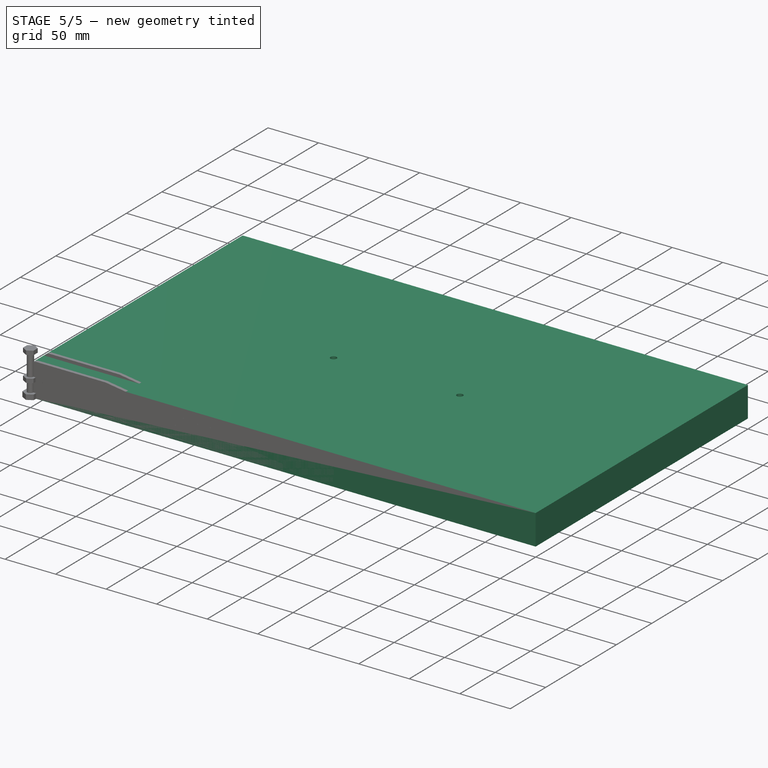
[diagram: stage 5 of 5 — iso view after this stage's code; geometry added in this stage tinted green]
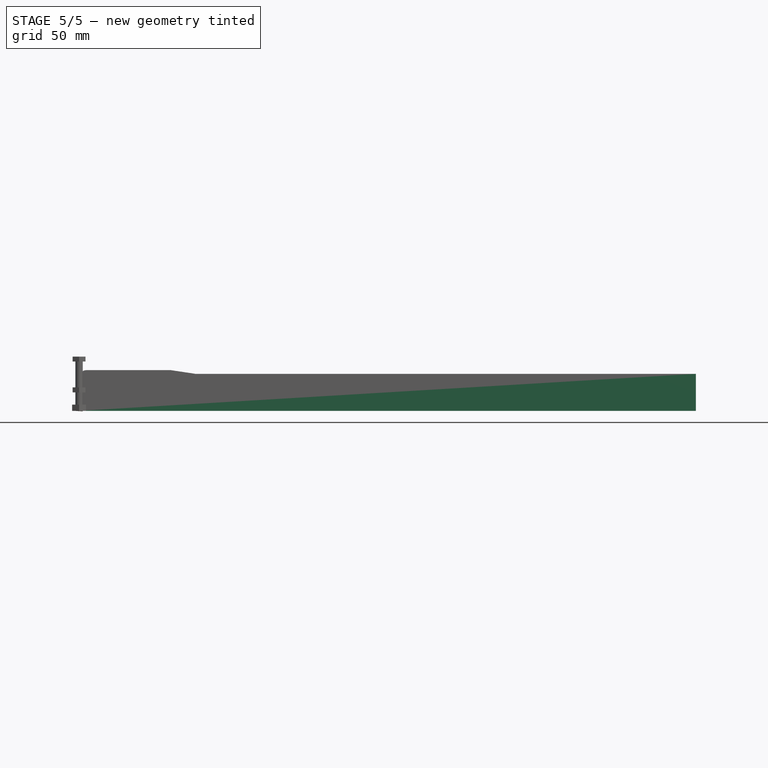
[diagram: stage 5 of 5 — front view after this stage's code; geometry added in this stage tinted green]
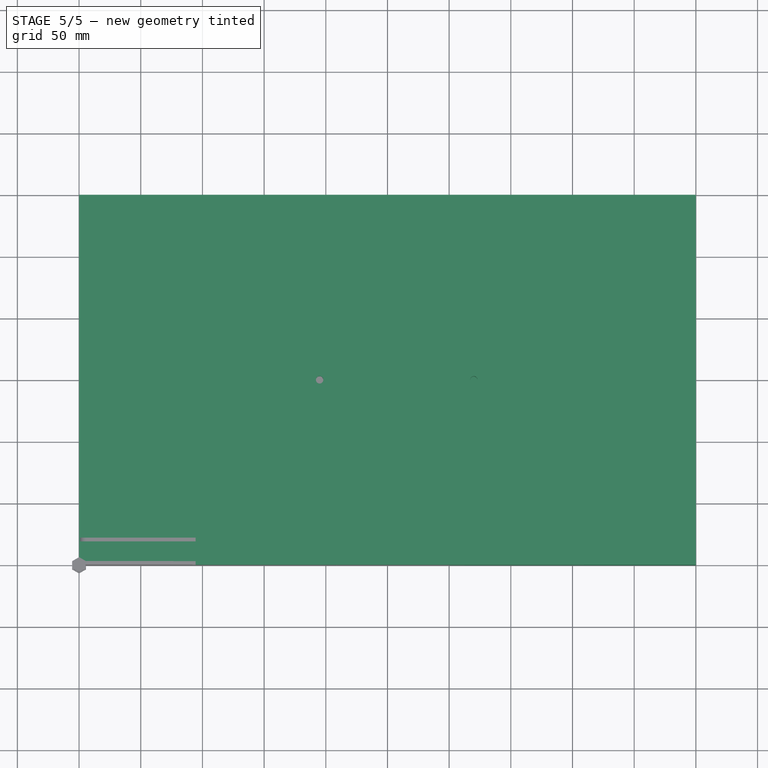
[diagram: stage 5 of 5 — top view after this stage's code; geometry added in this stage tinted green]
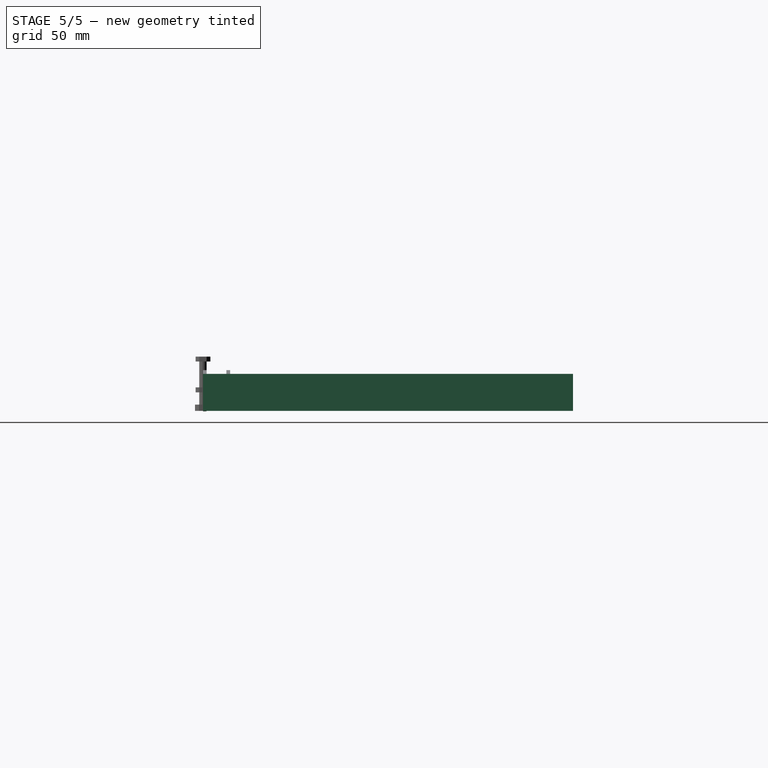
[diagram: stage 5 of 5 — right view after this stage's code; geometry added in this stage tinted green]
FEATURE [PartDesign::AdditiveBox] Box
  AttacherType = Attacher::AttachEngine3D
  Height = 30
  Length = 500
  Width = 300
FEATURE [Sketcher::SketchObject] Sketch
  FullyConstrained = true
  MapMode = 5
  Placement = pos=(0,0,30) rot=(0,0,1;0rad)
  Support = -> [Box]
  sketch-geometry (2):
    g0: Circle CenterX=195 CenterY=150 CenterZ=0 NormalX=0 NormalY=0 NormalZ=1 AngleXU=0 Radius=3
    g1: Circle CenterX=320 CenterY=150 CenterZ=0 NormalX=0 NormalY=0 NormalZ=1 AngleXU=0 Radius=3
  constraints (6):
    c: Radius(g0) = 3
    c: Radius(g1) = 3
    c: DistanceX(g1) = 320
    c: DistanceY(g1) = 150
    c: DistanceX(g0) = 195
    c: DistanceY(g0) = 150
FEATURE [Sketcher::SketchObject] Sketch002
  FullyConstrained = false
  MapMode = 5
  Placement = pos=(0,0,0) rot=(1,0,0;1.5708rad)
  Support = -> [XZ_Plane002]
  sketch-geometry (4):
    g0: LineSegment StartX=2.2049 StartY=0.00541692 StartZ=0 EndX=2.99622 EndY=-0.462288 EndZ=0
    g1: LineSegment StartX=2.99622 StartY=-0.462288 StartZ=0 EndX=3.00561 EndY=0.456871 EndZ=0
    g2: LineSegment StartX=3.00561 StartY=0.456871 StartZ=0 EndX=2.2049 EndY=0.00541692 EndZ=0
    g3: Circle CenterX=2.73558 CenterY=0 CenterZ=0 NormalX=0 NormalY=0 NormalZ=1 AngleXU=0 Radius=0.530704
  constraints (9):
    c: Coincident(g0,g1)
    c: Coincident(g1,g2)
    c: Coincident(g2,g0)
    c: Equal(g0,g1)
    c: Equal(g0,g2)
    c: PointOnObject(g0,g3)
    c: PointOnObject(g1,g3)
    c: PointOnObject(g2,g3)
    c: PointOnObject(g3,g-1)
FEATURE [PartDesign::AdditiveHelix] AdditiveHelix001
  Angle = 0
  Axis = (0,2e-16,1)
  Base = (0,0,0)
  HasBeenEdited = true
  Height = 20
  LeftHanded = false
  Mode = 0
  Outside = false
  Pitch = 1
  Placement = pos=(0,0,0) rot=(1,0,0;1.5708rad)
  Profile = -> Sketch002
  ReferenceAxis = -> Sketch002 [V_Axis]
  Turns = 20
FEATURE [PartDesign::Body] Body002  label="BH1"
  Group = -> [Sketch002,AdditiveHelix001]
  Origin = -> Origin002
  Placement = pos=(320,150,10) rot=(0,0,1;0rad)
  Tip = -> AdditiveHelix001
FEATURE [Sketcher::SketchObject] Sketch001
  FullyConstrained = false
  MapMode = 5
  Placement = pos=(0,0,0) rot=(1,0,0;1.5708rad)
  Support = -> [XZ_Plane001]
  sketch-geometry (4):
    g0: LineSegment StartX=2.2049 StartY=0.00541692 StartZ=0 EndX=2.99622 EndY=-0.462288 EndZ=0
    g1: LineSegment StartX=2.99622 StartY=-0.462288 StartZ=0 EndX=3.00561 EndY=0.456871 EndZ=0
    g2: LineSegment StartX=3.00561 StartY=0.456871 StartZ=0 EndX=2.2049 EndY=0.00541692 EndZ=0
    g3: Circle CenterX=2.73558 CenterY=0 CenterZ=0 NormalX=0 NormalY=0 NormalZ=1 AngleXU=0 Radius=0.530704
  constraints (9):
    c: Coincident(g0,g1)
    c: Coincident(g1,g2)
    c: Coincident(g2,g0)
    c: Equal(g0,g1)
    c: Equal(g0,g2)
    c: PointOnObject(g0,g3)
    c: PointOnObject(g1,g3)
    c: PointOnObject(g2,g3)
    c: PointOnObject(g3,g-1)
FEATURE [PartDesign::AdditiveHelix] AdditiveHelix
  Angle = 0
  Axis = (0,2e-16,1)
  Base = (0,0,0)
  HasBeenEdited = true
  Height = 20
  LeftHanded = false
  Mode = 0
  Outside = false
  Pitch = 1
  Placement = pos=(0,0,0) rot=(1,0,0;1.5708rad)
  Profile = -> Sketch001
  ReferenceAxis = -> Sketch001 [V_Axis]
  Turns = 20
FEATURE [PartDesign::Body] Body001
  Group = -> [Sketch001,AdditiveHelix]
  Origin = -> Origin001
  Placement = pos=(195,150,10) rot=(0,0,1;0rad)
  Tip = -> AdditiveHelix
FEATURE [PartDesign::Pocket] Pocket
  BaseFeature = -> Box
  Length = 20
  Length2 = 100
  Profile = -> Sketch
  Type = 0
FEATURE [PartDesign::Body] Body  label="Blue"
  Group = -> [Box,Sketch,Pocket]
  Origin = -> Origin
  Tip = -> Pocket
FEATURE [PartDesign::AdditiveBox] Box001
  AttacherType = Attacher::AttachEngine3D
  Height = 30
  Length = 200
  Width = 30
FEATURE [Sketcher::SketchObject] Sketch003
  FullyConstrained = false
  MapMode = 5
  Placement = pos=(0,0,30) rot=(0,0,1;0rad)
  Support = -> [Box001]
  sketch-geometry (4):
    g0: LineSegment StartX=-3.90526 StartY=27 StartZ=0 EndX=203.846 EndY=27 EndZ=0
    g1: LineSegment StartX=203.846 StartY=27 StartZ=0 EndX=203.846 EndY=3 EndZ=0
    g2: LineSegment StartX=203.846 StartY=3 StartZ=0 EndX=-3.90526 EndY=3 EndZ=0
    g3: LineSegment StartX=-3.90526 StartY=3 StartZ=0 EndX=-3.90526 EndY=27 EndZ=0
  constraints (10):
    c: Coincident(g0,g1)
    c: Coincident(g1,g2)
    c: Coincident(g2,g3)
    c: Coincident(g3,g0)
    c: Horizontal(g0)
    c: Horizontal(g2)
    c: Vertical(g1)
    c: Vertical(g3)
    c: DistanceY(g1) = 3
    c: DistanceY(g0) = 27
FEATURE [Sketcher::SketchObject] Sketch006
  FullyConstrained = true
  MapMode = 5
  Placement = pos=(0,0,0) rot=(1,0,0;1.5708rad)
  sketch-geometry (1):
    g0: Circle CenterX=15 CenterY=15 CenterZ=0 NormalX=0 NormalY=0 NormalZ=1 AngleXU=0 Radius=3
  constraints (3):
    c: Radius(g0) = 3
    c: DistanceX(g0) = 15
    c: DistanceY(g0) = 15
FEATURE [Sketcher::SketchObject] Sketch007
  FullyConstrained = false
  MapMode = 5
  Placement = pos=(0,0,0) rot=(1,0,0;1.5708rad)
  Support = -> [XZ_Plane004]
  sketch-geometry (4):
    g0: LineSegment StartX=2.2049 StartY=0.00541692 StartZ=0 EndX=2.99622 EndY=-0.462288 EndZ=0
    g1: LineSegment StartX=2.99622 StartY=-0.462288 StartZ=0 EndX=3.00561 EndY=0.456871 EndZ=0
    g2: LineSegment StartX=3.00561 StartY=0.456871 StartZ=0 EndX=2.2049 EndY=0.00541692 EndZ=0
    g3: Circle CenterX=2.73558 CenterY=0 CenterZ=0 NormalX=0 NormalY=0 NormalZ=1 AngleXU=0 Radius=0.530704
  constraints (9):
    c: Coincident(g0,g1)
    c: Coincident(g1,g2)
    c: Coincident(g2,g0)
    c: Equal(g0,g1)
    c: Equal(g0,g2)
    c: PointOnObject(g0,g3)
    c: PointOnObject(g1,g3)
    c: PointOnObject(g2,g3)
    c: PointOnObject(g3,g-1)
FEATURE [Sketcher::SketchObject] Sketch008
  FullyConstrained = false
  MapMode = 5
  Placement = pos=(0,0,0) rot=(1,0,0;1.5708rad)
  Support = -> [XZ_Plane003]
  sketch-geometry (4):
    g0: LineSegment StartX=2.2049 StartY=0.00541692 StartZ=0 EndX=2.99622 EndY=-0.462288 EndZ=0
    g1: LineSegment StartX=2.99622 StartY=-0.462288 StartZ=0 EndX=3.00561 EndY=0.456871 EndZ=0
    g2: LineSegment StartX=3.00561 StartY=0.456871 StartZ=0 EndX=2.2049 EndY=0.00541692 EndZ=0
    g3: Circle CenterX=2.73558 CenterY=0 CenterZ=0 NormalX=0 NormalY=0 NormalZ=1 AngleXU=0 Radius=0.530704
  constraints (9):
    c: Coincident(g0,g1)
    c: Coincident(g1,g2)
    c: Coincident(g2,g0)
    c: Equal(g0,g1)
    c: Equal(g0,g2)
    c: PointOnObject(g0,g3)
    c: PointOnObject(g1,g3)
    c: PointOnObject(g2,g3)
    c: PointOnObject(g3,g-1)
FEATURE [PartDesign::AdditiveHelix] AdditiveHelix002
  Angle = 0
  Axis = (0,-2e-16,1)
  Base = (0,0,0)
  HasBeenEdited = true
  Height = 3
  LeftHanded = false
  Mode = 0
  Outside = false
  Pitch = 1
  Placement = pos=(0,0,0) rot=(1,0,0;1.5708rad)
  Profile = -> Sketch008
  ReferenceAxis = -> Sketch008 [V_Axis]
  Turns = 3
FEATURE [PartDesign::Body] Body005
  Group = -> [Sketch008,AdditiveHelix002]
  Origin = -> Origin005
  Placement = pos=(320,150,30) rot=(0,0,1;0rad)
  Tip = -> AdditiveHelix002
FEATURE [PartDesign::Pocket] Pocket005
  BaseFeature = -> Box001
  Length = 27
  Length2 = 100
  Profile = -> Sketch003
  Type = 0
FEATURE [Sketcher::SketchObject] Sketch005
  FullyConstrained = false
  MapMode = 5
  Placement = pos=(0,0,0) rot=(1,0,0;1.5708rad)
  Support = -> [Pocket005]
  sketch-geometry (3):
    g0: LineSegment StartX=20.2022 StartY=34.0201 StartZ=0 EndX=202.687 EndY=3.39334 EndZ=0
    g1: LineSegment StartX=20.2022 StartY=34.0201 StartZ=0 EndX=216.979 EndY=34.0201 EndZ=0
    g2: LineSegment StartX=202.687 StartY=3.39333 StartZ=0 EndX=216.979 EndY=34.0201 EndZ=0
  constraints (4):
    c: Coincident(g1,g0)
    c: Horizontal(g1)
    c: Coincident(g2,g0)
    c: Coincident(g2,g1)
FEATURE [PartDesign::Pocket] Pocket001
  BaseFeature = -> Pocket005
  Length = 50
  Length2 = 100
  Profile = -> Sketch005
  Type = 0
FEATURE [Sketcher::SketchObject] Sketch004
  FullyConstrained = true
  MapMode = 5
  Placement = pos=(0,0,3) rot=(0,0,1;0rad)
  Support = -> [Pocket001]
  sketch-geometry (2):
    g0: Circle CenterX=45 CenterY=15 CenterZ=0 NormalX=0 NormalY=0 NormalZ=1 AngleXU=0 Radius=3
    g1: Circle CenterX=170 CenterY=15 CenterZ=0 NormalX=0 NormalY=0 NormalZ=1 AngleXU=0 Radius=3
  constraints (6):
    c: Radius(g0) = 3
    c: DistanceX(g0) = 45
    c: DistanceY(g0) = 15
    c: Radius(g1) = 3
    c: Distance(g1,g0) = 125
    c: DistanceY(g-1,g1) = 15
FEATURE [PartDesign::Pocket] Pocket003
  BaseFeature = -> Pocket001
  Length = 50
  Length2 = 100
  Profile = -> Sketch006
  Type = 0
FEATURE [PartDesign::Pocket] Pocket004
  BaseFeature = -> Pocket003
  Length = 5
  Length2 = 100
  Profile = -> Sketch004
  Type = 0
FEATURE [PartDesign::Body] Body003
  Group = -> [Box001,Sketch003,Pocket005,Sketch005,Pocket001,Sketch004,Sketch006,Pocket003,Pocket004]
  Origin = -> Origin004
  Placement = pos=(150,135,30) rot=(0,0,1;0rad)
  Tip = -> Pocket004
FEATURE [PartDesign::AdditiveHelix] AdditiveHelix003
  Angle = 0
  Axis = (0,-2e-16,1)
  Base = (0,0,0)
  HasBeenEdited = true
  Height = 3
  LeftHanded = false
  Mode = 0
  Outside = false
  Pitch = 1
  Placement = pos=(0,0,0) rot=(1,0,0;1.5708rad)
  Profile = -> Sketch007
  ReferenceAxis = -> Sketch007 [V_Axis]
  Turns = 3
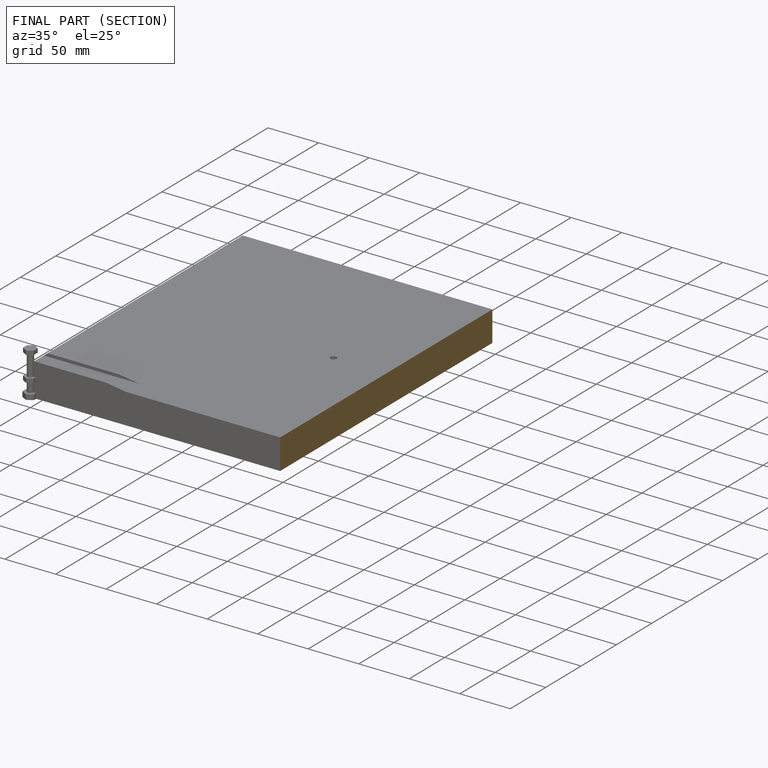
[diagram: finished part — half-section view (interior)]
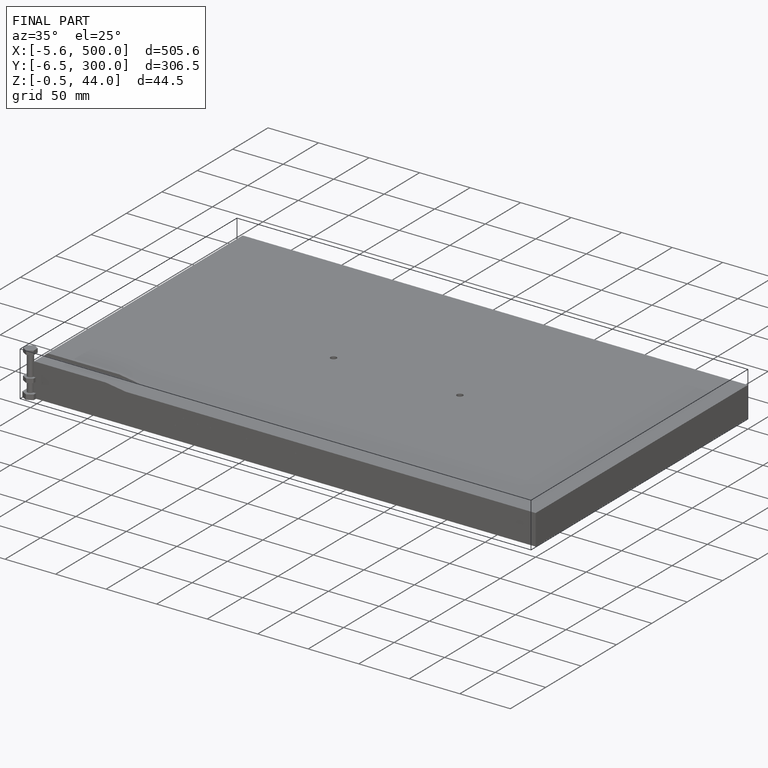
[diagram: finished part — iso view with bounding-box wireframe]
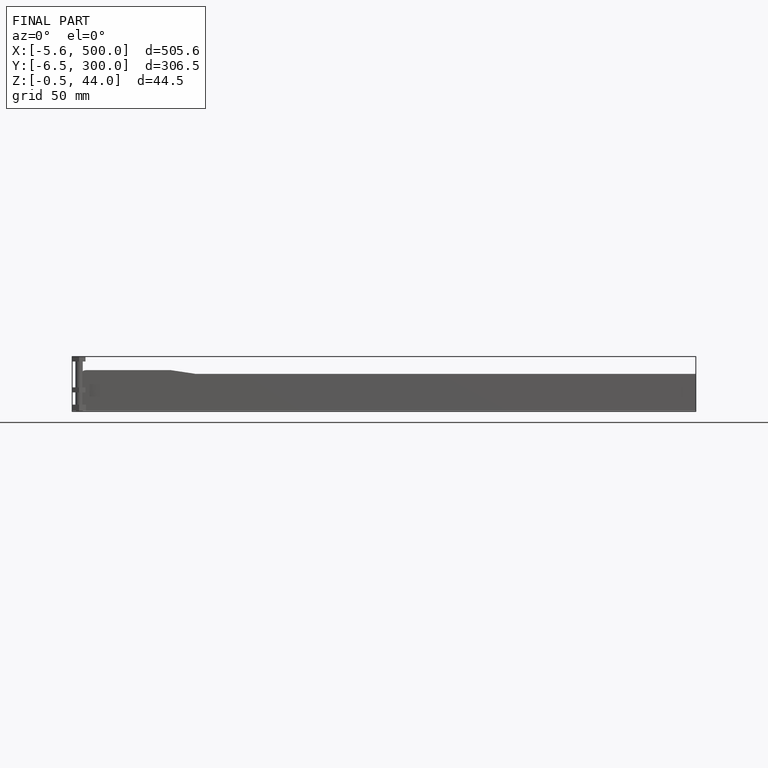
[diagram: finished part — front view with bounding-box wireframe]
